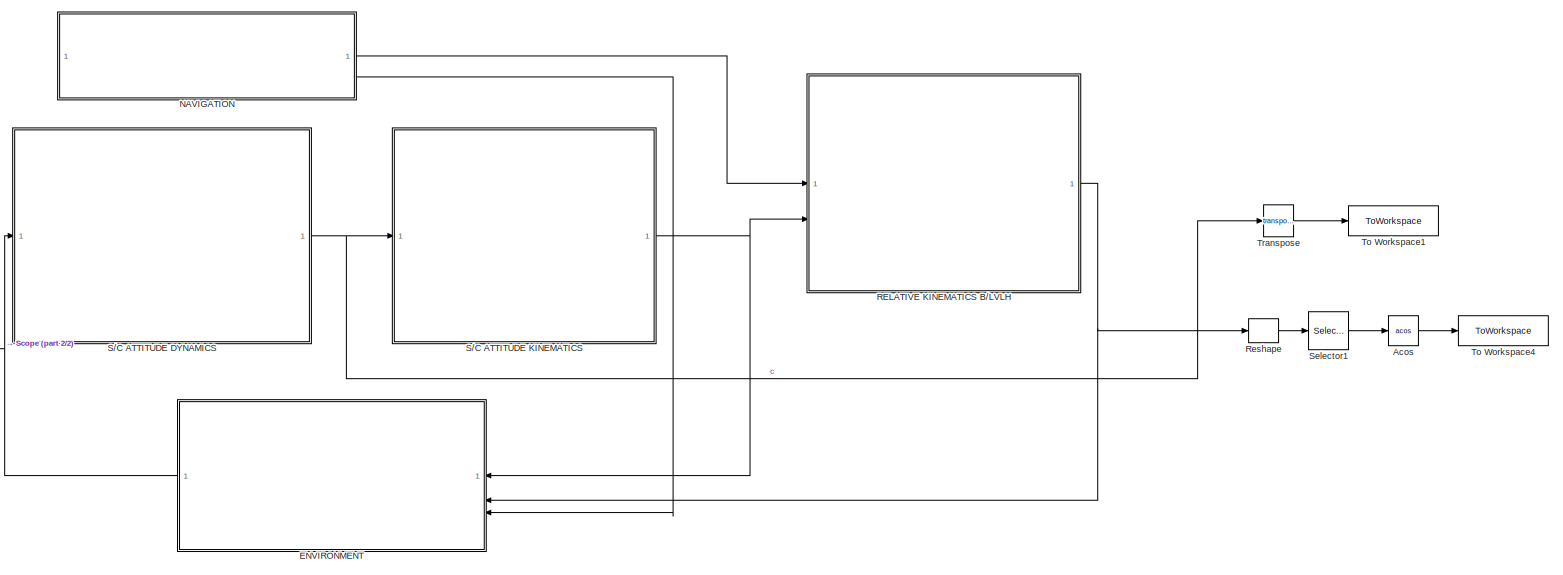
[diagram: root canvas - part 1/2, most of the canvas]
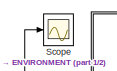
[diagram: root canvas - part 2/2, top left region]
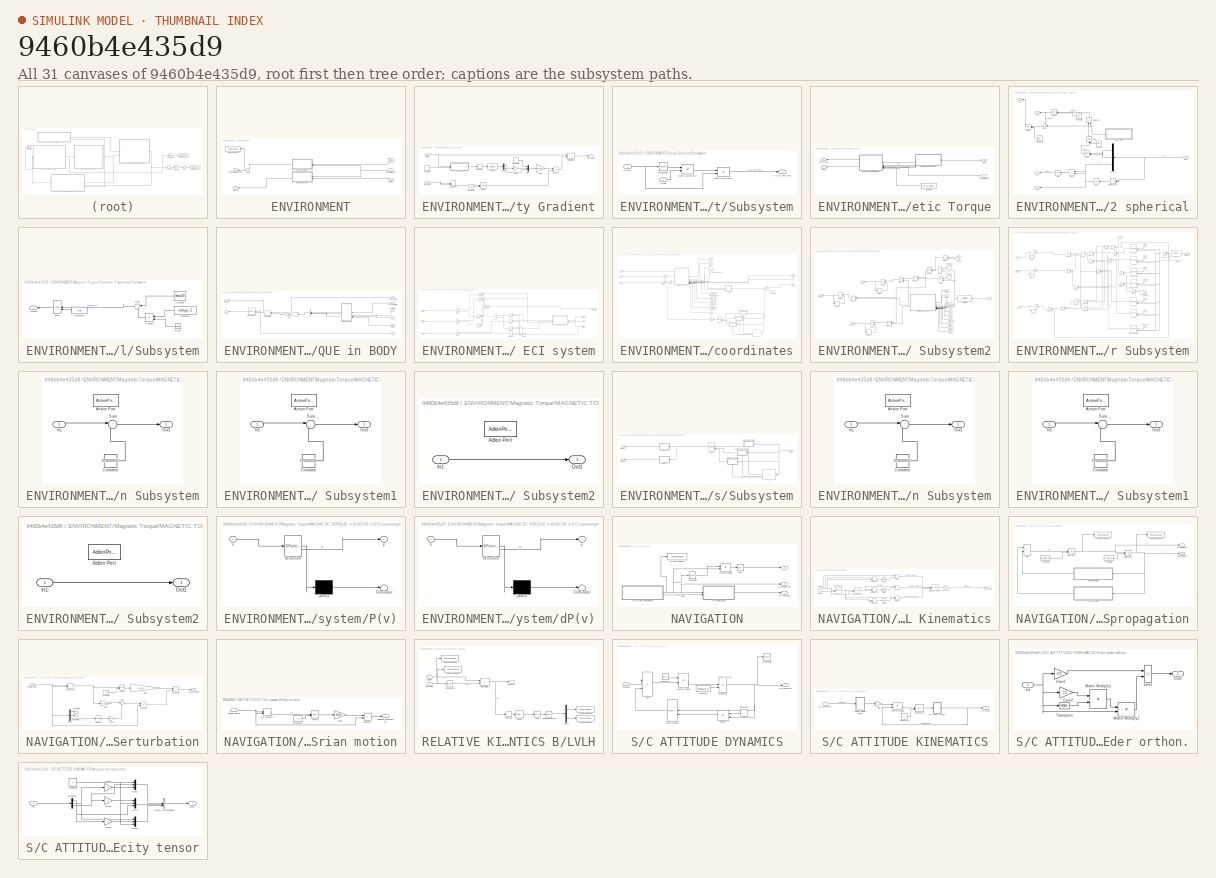
[diagram: thumbnail index - all 31 canvases of the model, root first then tree order]
MODEL slx_9460b4e435d9
KIND model
CONFIG AbsTol = auto
CONFIG EnableMultiTasking = off
CONFIG FixedStep = 0.1
CONFIG MaxStep = auto
CONFIG MinStep = auto
CONFIG RelTol = 1e-3
CONFIG SampleTimeConstraint = Unconstrained
CONFIG SolverName = ode4
CONFIG StartTime = 0.0
CONFIG StopTime = 50
BLOCK [Trigonometry] Acos
  Operator = acos
BLOCK [SubSystem] ENVIRONMENT
BLOCK [Inport] ENVIRONMENT/Att_B\ECI
  NameLocation = top
BLOCK [Inport] ENVIRONMENT/Att_B\LVLH
  Port = 2
BLOCK [SubSystem] ENVIRONMENT/Gravity Gradient
  NameLocation = top
BLOCK [Inport] ENVIRONMENT/Gravity Gradient/Att_B\L
BLOCK [Constant] ENVIRONMENT/Gravity Gradient/Constant
  Value = -1.5
BLOCK [Constant] ENVIRONMENT/Gravity Gradient/Constant7
  Value = I
BLOCK [Constant] ENVIRONMENT/Gravity Gradient/Constant8
  Value = 0
BLOCK [Demux] ENVIRONMENT/Gravity Gradient/Demux
  Outputs = 2
BLOCK [DotProduct] ENVIRONMENT/Gravity Gradient/Dot Product
  OutDataTypeStr = Inherit: Inherit via internal rule
BLOCK [Outport] ENVIRONMENT/Gravity Gradient/GG_Torque
BLOCK [Gain] ENVIRONMENT/Gravity Gradient/Gain2
  Gain = 3*mu_E
BLOCK [Gain] ENVIRONMENT/Gravity Gradient/Gain3
  Gain = -1
BLOCK [Product] ENVIRONMENT/Gravity Gradient/Matrix Multiply5
  Multiplication = Matrix(*)
BLOCK [Mux] ENVIRONMENT/Gravity Gradient/Mux4
  DisplayOption = bar
  Inputs = 3
BLOCK [Math] ENVIRONMENT/Gravity Gradient/Power
  Operator = pow
BLOCK [Product] ENVIRONMENT/Gravity Gradient/Product
BLOCK [Reshape] ENVIRONMENT/Gravity Gradient/Reshape
BLOCK [Inport] ENVIRONMENT/Gravity Gradient/S//C Position
  Port = 2
BLOCK [Selector] ENVIRONMENT/Gravity Gradient/Selector
  IndexOptions = Index vector (dialog)
  Indices = [2,3]
  InputPortWidth = 9
  OutputSizes = 1
BLOCK [SubSystem] ENVIRONMENT/Gravity Gradient/Subsystem
BLOCK [Inport] ENVIRONMENT/Gravity Gradient/Subsystem/Att_B\L
BLOCK [Outport] ENVIRONMENT/Gravity Gradient/Subsystem/I LVLH FRAME
BLOCK [Inport] ENVIRONMENT/Gravity Gradient/Subsystem/I_Body
  Port = 2
BLOCK [Product] ENVIRONMENT/Gravity Gradient/Subsystem/Matrix Multiply3
  Multiplication = Matrix(*)
BLOCK [Product] ENVIRONMENT/Gravity Gradient/Subsystem/Matrix Multiply4
  Multiplication = Matrix(*)
BLOCK [Math] ENVIRONMENT/Gravity Gradient/Subsystem/Transpose2
  Operator = transpose
BLOCK [Outport] ENVIRONMENT/Mag_fld
  NameLocation = top
  Port = 2
BLOCK [SubSystem] ENVIRONMENT/Magnetic Torque
  NameLocation = top
BLOCK [SubSystem] ENVIRONMENT/Magnetic Torque/Cartesian 2 spherical
BLOCK [Trigonometry] ENVIRONMENT/Magnetic Torque/Cartesian 2 spherical/Asin
  NameLocation = top
  Operator = asin
BLOCK [Trigonometry] ENVIRONMENT/Magnetic Torque/Cartesian 2 spherical/Atan2
  NameLocation = top
  Operator = atan2
BLOCK [Constant] ENVIRONMENT/Magnetic Torque/Cartesian 2 spherical/Constant
  NameLocation = top
  Value = 2*pi
BLOCK [Constant] ENVIRONMENT/Magnetic Torque/Cartesian 2 spherical/Constant1
  NameLocation = top
  Value = 2*pi
BLOCK [Constant] ENVIRONMENT/Magnetic Torque/Cartesian 2 spherical/Constant2
  NameLocation = top
  Value = 2*pi
BLOCK [Demux] ENVIRONMENT/Magnetic Torque/Cartesian 2 spherical/Demux
  NameLocation = top
  Outputs = 3
BLOCK [Product] ENVIRONMENT/Magnetic Torque/Cartesian 2 spherical/Divide
  Inputs = */
  NameLocation = top
BLOCK [DotProduct] ENVIRONMENT/Magnetic Torque/Cartesian 2 spherical/Dot Product
  NameLocation = top
  OutDataTypeStr = Inherit: Inherit via internal rule
BLOCK [Outport] ENVIRONMENT/Magnetic Torque/Cartesian 2 spherical/LST
  NameLocation = top
BLOCK [Outport] ENVIRONMENT/Magnetic Torque/Cartesian 2 spherical/Long
  NameLocation = top
  Port = 2
BLOCK [Math] ENVIRONMENT/Magnetic Torque/Cartesian 2 spherical/Mod
  NameLocation = right
  Operator = mod
BLOCK [Math] ENVIRONMENT/Magnetic Torque/Cartesian 2 spherical/Mod1
  NameLocation = top
  Operator = mod
BLOCK [Math] ENVIRONMENT/Magnetic Torque/Cartesian 2 spherical/Mod2
  NameLocation = top
  Operator = mod
BLOCK [Sqrt] ENVIRONMENT/Magnetic Torque/Cartesian 2 spherical/Sqrt
  NameLocation = top
BLOCK [SubSystem] ENVIRONMENT/Magnetic Torque/Cartesian 2 spherical/Subsystem
  NameLocation = top
BLOCK [Clock] ENVIRONMENT/Magnetic Torque/Cartesian 2 spherical/Subsystem/Clock
  NameLocation = top
BLOCK [Constant] ENVIRONMENT/Magnetic Torque/Cartesian 2 spherical/Subsystem/Constant
  NameLocation = top
  Value = theta_G0
BLOCK [Constant] ENVIRONMENT/Magnetic Torque/Cartesian 2 spherical/Subsystem/Constant1
  NameLocation = top
  Value = omega_E
BLOCK [Constant] ENVIRONMENT/Magnetic Torque/Cartesian 2 spherical/Subsystem/Constant2
  NameLocation = top
  Value = 2*pi
BLOCK [Math] ENVIRONMENT/Magnetic Torque/Cartesian 2 spherical/Subsystem/Mod
  NameLocation = top
  Operator = mod
BLOCK [Outport] ENVIRONMENT/Magnetic Torque/Cartesian 2 spherical/Subsystem/Output
  NameLocation = top
BLOCK [Product] ENVIRONMENT/Magnetic Torque/Cartesian 2 spherical/Subsystem/Product
  NameLocation = top
BLOCK [Sum] ENVIRONMENT/Magnetic Torque/Cartesian 2 spherical/Subsystem/Sum
  Inputs = |++
  NameLocation = top
BLOCK [Sum] ENVIRONMENT/Magnetic Torque/Cartesian 2 spherical/Subtract
  IconShape = rectangular
  Inputs = +-
  NameLocation = right
BLOCK [Sum] ENVIRONMENT/Magnetic Torque/Cartesian 2 spherical/Sum
  Inputs = ++|
  NameLocation = top
BLOCK [Inport] ENVIRONMENT/Magnetic Torque/Cartesian 2 spherical/[km]
  NameLocation = top
BLOCK [Outport] ENVIRONMENT/Magnetic Torque/Cartesian 2 spherical/lat
  NameLocation = top
  Port = 4
BLOCK [Outport] ENVIRONMENT/Magnetic Torque/Cartesian 2 spherical/radius
  NameLocation = top
  Port = 3
BLOCK [Constant] ENVIRONMENT/Magnetic Torque/Constant1
  NameLocation = top
  Value = m_sc_body
BLOCK [SubSystem] ENVIRONMENT/Magnetic Torque/MAGNETIC TORQUE in BODY
  NameLocation = top
BLOCK [Concatenate] ENVIRONMENT/Magnetic Torque/MAGNETIC TORQUE in BODY/B
  NameLocation = top
  NumInputs = 3
BLOCK [SubSystem] ENVIRONMENT/Magnetic Torque/MAGNETIC TORQUE in BODY/B in ECI system
  NameLocation = top
BLOCK [Product] ENVIRONMENT/Magnetic Torque/MAGNETIC TORQUE in BODY/B in ECI system/Bphi cos
  NameLocation = top
BLOCK [Product] ENVIRONMENT/Magnetic Torque/MAGNETIC TORQUE in BODY/B in ECI system/Bphi sin
  NameLocation = top
BLOCK [Product] ENVIRONMENT/Magnetic Torque/MAGNETIC TORQUE in BODY/B in ECI system/Br cos
  NameLocation = top
BLOCK [Product] ENVIRONMENT/Magnetic Torque/MAGNETIC TORQUE in BODY/B in ECI system/Br sin
  NameLocation = top
BLOCK [Product] ENVIRONMENT/Magnetic Torque/MAGNETIC TORQUE in BODY/B in ECI system/Btheta cos
  NameLocation = top
BLOCK [Product] ENVIRONMENT/Magnetic Torque/MAGNETIC TORQUE in BODY/B in ECI system/Btheta sin
  NameLocation = top
BLOCK [Outport] ENVIRONMENT/Magnetic Torque/MAGNETIC TORQUE in BODY/B in ECI system/Out1
BLOCK [Outport] ENVIRONMENT/Magnetic Torque/MAGNETIC TORQUE in BODY/B in ECI system/Out2
  Port = 2
BLOCK [Outport] ENVIRONMENT/Magnetic Torque/MAGNETIC TORQUE in BODY/B in ECI system/Out3
  Port = 3
BLOCK [Product] ENVIRONMENT/Magnetic Torque/MAGNETIC TORQUE in BODY/B in ECI system/Product
  NameLocation = top
BLOCK [Product] ENVIRONMENT/Magnetic Torque/MAGNETIC TORQUE in BODY/B in ECI system/Product1
  NameLocation = top
BLOCK [Trigonometry] ENVIRONMENT/Magnetic Torque/MAGNETIC TORQUE in BODY/B in ECI system/SinCos
  NameLocation = top
  Operator = sincos
BLOCK [Trigonometry] ENVIRONMENT/Magnetic Torque/MAGNETIC TORQUE in BODY/B in ECI system/SinCos1
  NameLocation = top
  Operator = sincos
BLOCK [Sum] ENVIRONMENT/Magnetic Torque/MAGNETIC TORQUE in BODY/B in ECI system/Sum
  IconShape = rectangular
  Inputs = |++
  NameLocation = top
BLOCK [Sum] ENVIRONMENT/Magnetic Torque/MAGNETIC TORQUE in BODY/B in ECI system/Sum1
  IconShape = rectangular
  Inputs = |-+
  NameLocation = top
BLOCK [Sum] ENVIRONMENT/Magnetic Torque/MAGNETIC TORQUE in BODY/B in ECI system/Sum2
  IconShape = rectangular
  Inputs = |++
  NameLocation = top
BLOCK [Sum] ENVIRONMENT/Magnetic Torque/MAGNETIC TORQUE in BODY/B in ECI system/Sum3
  IconShape = rectangular
  Inputs = |++
  NameLocation = top
BLOCK [Inport] ENVIRONMENT/Magnetic Torque/MAGNETIC TORQUE in BODY/B in ECI system/latitude
  Port = 4
BLOCK [Inport] ENVIRONMENT/Magnetic Torque/MAGNETIC TORQUE in BODY/B in ECI system/local siderial time
BLOCK [Inport] ENVIRONMENT/Magnetic Torque/MAGNETIC TORQUE in BODY/B in ECI system/longitude
  Port = 2
BLOCK [Inport] ENVIRONMENT/Magnetic Torque/MAGNETIC TORQUE in BODY/B in ECI system/r
  Port = 3
BLOCK [SubSystem] ENVIRONMENT/Magnetic Torque/MAGNETIC TORQUE in BODY/B in ECI system/spherical coordinates
  NameLocation = top
BLOCK [Constant] ENVIRONMENT/Magnetic Torque/MAGNETIC TORQUE in BODY/B in ECI system/spherical coordinates/ (nxm)
  NameLocation = top
  Value = g_nm
BLOCK [Constant] ENVIRONMENT/Magnetic Torque/MAGNETIC TORQUE in BODY/B in ECI system/spherical coordinates/(nxm)
  NameLocation = top
  Value = h_nm
BLOCK [Outport] ENVIRONMENT/Magnetic Torque/MAGNETIC TORQUE in BODY/B in ECI system/spherical coordinates/B_p
  Port = 3
BLOCK [Outport] ENVIRONMENT/Magnetic Torque/MAGNETIC TORQUE in BODY/B in ECI system/spherical coordinates/B_r
BLOCK [Outport] ENVIRONMENT/Magnetic Torque/MAGNETIC TORQUE in BODY/B in ECI system/spherical coordinates/B_t
  Port = 2
BLOCK [Constant] ENVIRONMENT/Magnetic Torque/MAGNETIC TORQUE in BODY/B in ECI system/spherical coordinates/Constant11
  NameLocation = top
  Value = pi/2
BLOCK [Constant] ENVIRONMENT/Magnetic Torque/MAGNETIC TORQUE in BODY/B in ECI system/spherical coordinates/Constant12
  NameLocation = top
  Value = smith_norm
BLOCK [Constant] ENVIRONMENT/Magnetic Torque/MAGNETIC TORQUE in BODY/B in ECI system/spherical coordinates/Constant13
  NameLocation = top
  Value = correct_h
BLOCK [Constant] ENVIRONMENT/Magnetic Torque/MAGNETIC TORQUE in BODY/B in ECI system/spherical coordinates/Constant14
  NameLocation = top
  Value = correct_g
BLOCK [Product] ENVIRONMENT/Magnetic Torque/MAGNETIC TORQUE in BODY/B in ECI system/spherical coordinates/Divide
  Inputs = */
  NameLocation = top
BLOCK [Constant] ENVIRONMENT/Magnetic Torque/MAGNETIC TORQUE in BODY/B in ECI system/spherical coordinates/Earth's Radius [km]
  NameLocation = top
  Value = 6371.2
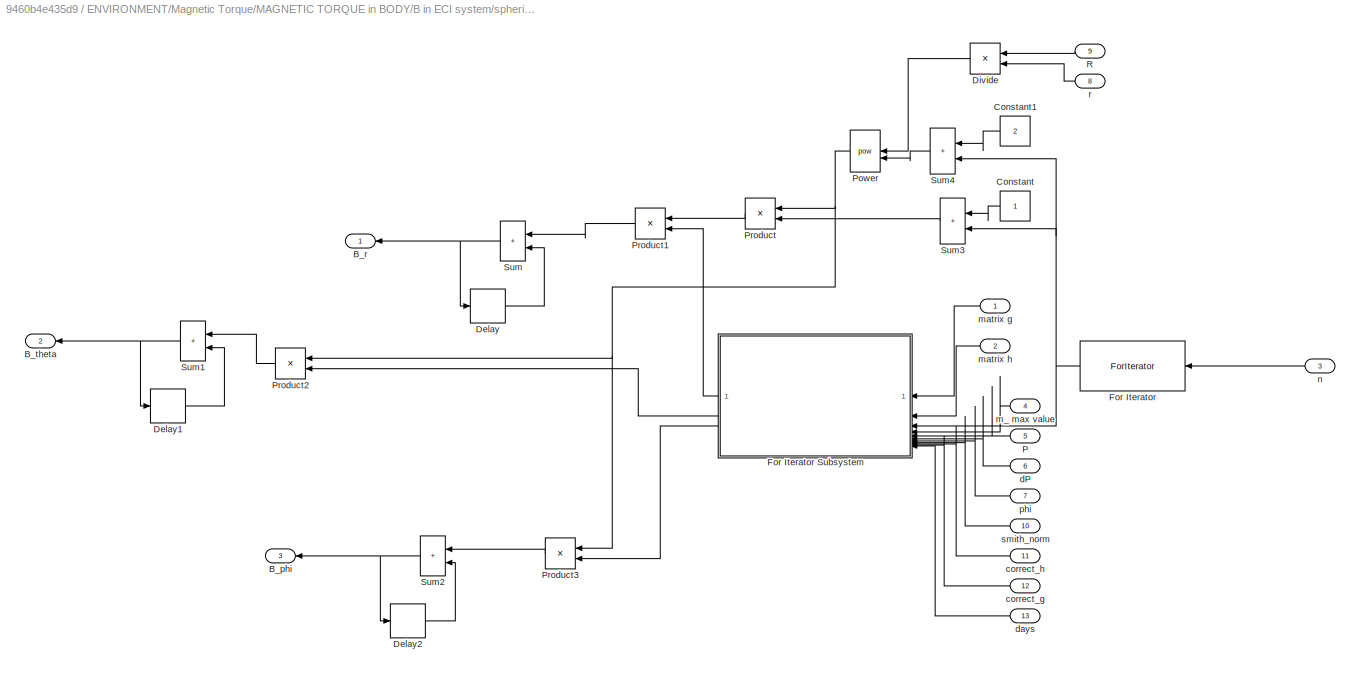
BLOCK [SubSystem] ENVIRONMENT/Magnetic Torque/MAGNETIC TORQUE in BODY/B in ECI system/spherical coordinates/For Iterator Subsystem2
  NameLocation = top
  TreatAsAtomicUnit = on
BLOCK [Outport] ENVIRONMENT/Magnetic Torque/MAGNETIC TORQUE in BODY/B in ECI system/spherical coordinates/For Iterator Subsystem2/B_phi
  NameLocation = top
  Port = 3
BLOCK [Outport] ENVIRONMENT/Magnetic Torque/MAGNETIC TORQUE in BODY/B in ECI system/spherical coordinates/For Iterator Subsystem2/B_r
  NameLocation = top
BLOCK [Outport] ENVIRONMENT/Magnetic Torque/MAGNETIC TORQUE in BODY/B in ECI system/spherical coordinates/For Iterator Subsystem2/B_theta
  NameLocation = top
  Port = 2
BLOCK [Constant] ENVIRONMENT/Magnetic Torque/MAGNETIC TORQUE in BODY/B in ECI system/spherical coordinates/For Iterator Subsystem2/Constant
  NameLocation = top
BLOCK [Constant] ENVIRONMENT/Magnetic Torque/MAGNETIC TORQUE in BODY/B in ECI system/spherical coordinates/For Iterator Subsystem2/Constant1
  NameLocation = top
  Value = 2
BLOCK [Delay] ENVIRONMENT/Magnetic Torque/MAGNETIC TORQUE in BODY/B in ECI system/spherical coordinates/For Iterator Subsystem2/Delay
  DelayLength = 1
  InitialCondition = 0
  InputPortMap = u0
BLOCK [Delay] ENVIRONMENT/Magnetic Torque/MAGNETIC TORQUE in BODY/B in ECI system/spherical coordinates/For Iterator Subsystem2/Delay1
  DelayLength = 1
  InitialCondition = 0
  InputPortMap = u0
BLOCK [Delay] ENVIRONMENT/Magnetic Torque/MAGNETIC TORQUE in BODY/B in ECI system/spherical coordinates/For Iterator Subsystem2/Delay2
  DelayLength = 1
  InitialCondition = 0
  InputPortMap = u0
BLOCK [Product] ENVIRONMENT/Magnetic Torque/MAGNETIC TORQUE in BODY/B in ECI system/spherical coordinates/For Iterator Subsystem2/Divide
  Inputs = */
  NameLocation = top
BLOCK [ForIterator] ENVIRONMENT/Magnetic Torque/MAGNETIC TORQUE in BODY/B in ECI system/spherical coordinates/For Iterator Subsystem2/For Iterator
  IterationSource = external
  NameLocation = top
  ResetStates = reset
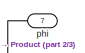
[diagram: ENVIRONMENT/Magnetic Torque/MAGNETIC TORQUE in BODY/B in ECI system/spherical coordinates/For Iterator Subsystem2/For Iterator Subsystem - part 1/3, top center region]
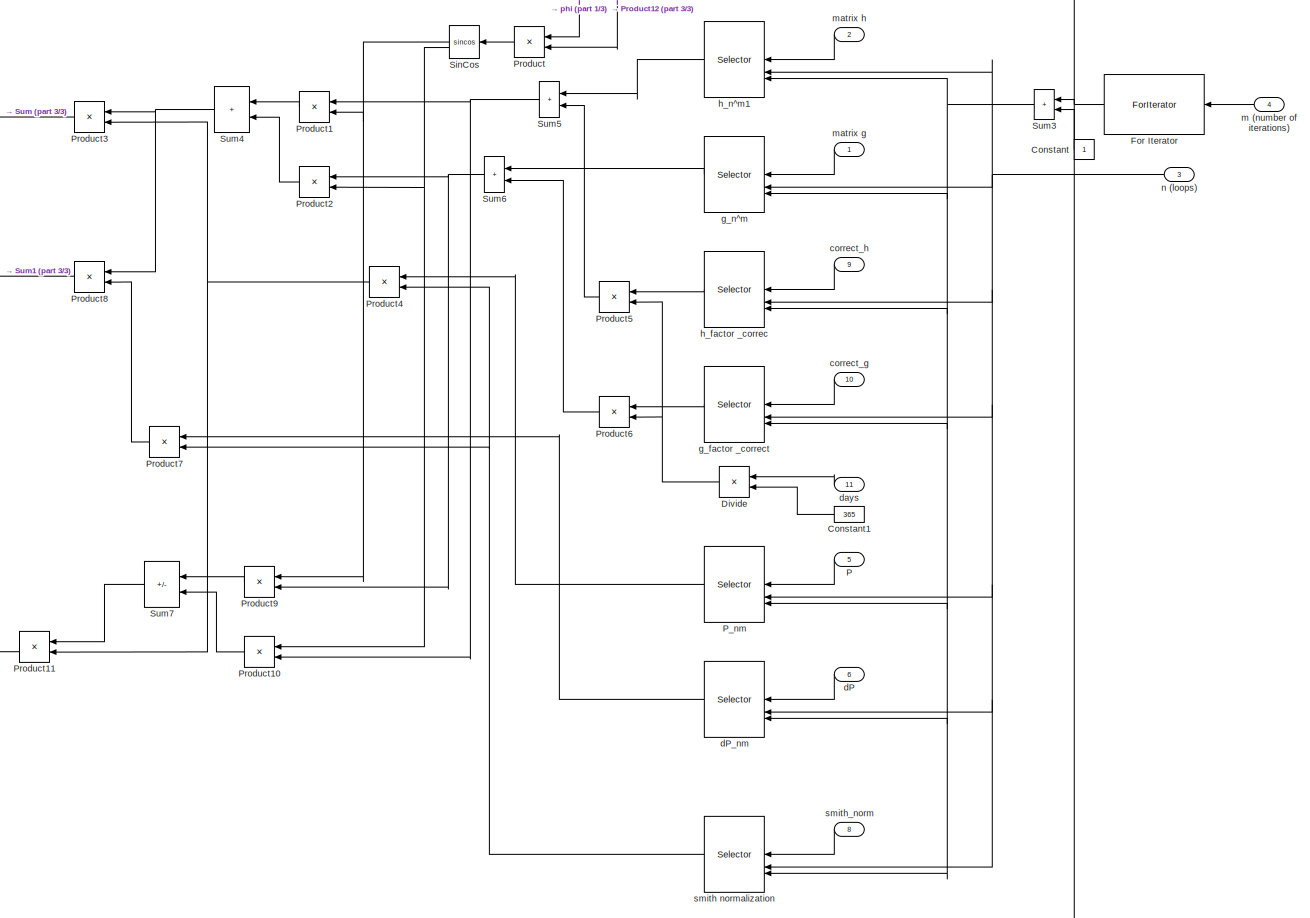
[diagram: ENVIRONMENT/Magnetic Torque/MAGNETIC TORQUE in BODY/B in ECI system/spherical coordinates/For Iterator Subsystem2/For Iterator Subsystem - part 2/3, most of the canvas]
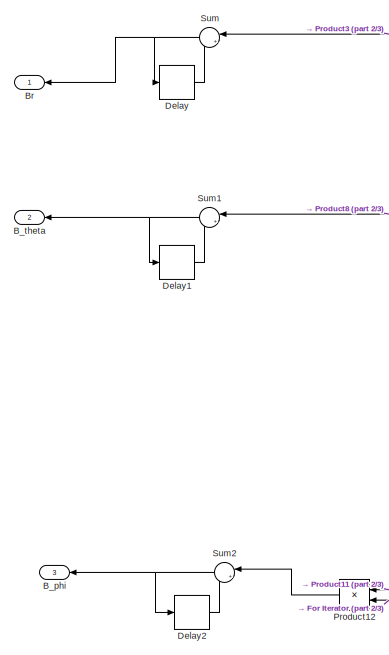
[diagram: ENVIRONMENT/Magnetic Torque/MAGNETIC TORQUE in BODY/B in ECI system/spherical coordinates/For Iterator Subsystem2/For Iterator Subsystem - part 3/3, middle left region]
BLOCK [SubSystem] ENVIRONMENT/Magnetic Torque/MAGNETIC TORQUE in BODY/B in ECI system/spherical coordinates/For Iterator Subsystem2/For Iterator Subsystem
  NameLocation = top
  TreatAsAtomicUnit = on
BLOCK [Outport] ENVIRONMENT/Magnetic Torque/MAGNETIC TORQUE in BODY/B in ECI system/spherical coordinates/For Iterator Subsystem2/For Iterator Subsystem/B_phi
  NameLocation = top
  Port = 3
BLOCK [Outport] ENVIRONMENT/Magnetic Torque/MAGNETIC TORQUE in BODY/B in ECI system/spherical coordinates/For Iterator Subsystem2/For Iterator Subsystem/B_theta
  NameLocation = top
  Port = 2
BLOCK [Outport] ENVIRONMENT/Magnetic Torque/MAGNETIC TORQUE in BODY/B in ECI system/spherical coordinates/For Iterator Subsystem2/For Iterator Subsystem/Br
  NameLocation = top
BLOCK [Constant] ENVIRONMENT/Magnetic Torque/MAGNETIC TORQUE in BODY/B in ECI system/spherical coordinates/For Iterator Subsystem2/For Iterator Subsystem/Constant
  NameLocation = top
BLOCK [Constant] ENVIRONMENT/Magnetic Torque/MAGNETIC TORQUE in BODY/B in ECI system/spherical coordinates/For Iterator Subsystem2/For Iterator Subsystem/Constant1
  NameLocation = top
  Value = 365
BLOCK [Delay] ENVIRONMENT/Magnetic Torque/MAGNETIC TORQUE in BODY/B in ECI system/spherical coordinates/For Iterator Subsystem2/For Iterator Subsystem/Delay
  DelayLength = 1
  InitialCondition = 0
  InputPortMap = u0
BLOCK [Delay] ENVIRONMENT/Magnetic Torque/MAGNETIC TORQUE in BODY/B in ECI system/spherical coordinates/For Iterator Subsystem2/For Iterator Subsystem/Delay1
  DelayLength = 1
  InitialCondition = 0
  InputPortMap = u0
BLOCK [Delay] ENVIRONMENT/Magnetic Torque/MAGNETIC TORQUE in BODY/B in ECI system/spherical coordinates/For Iterator Subsystem2/For Iterator Subsystem/Delay2
  DelayLength = 1
  InitialCondition = 0
  InputPortMap = u0
BLOCK [Product] ENVIRONMENT/Magnetic Torque/MAGNETIC TORQUE in BODY/B in ECI system/spherical coordinates/For Iterator Subsystem2/For Iterator Subsystem/Divide
  Inputs = */
  NameLocation = top
BLOCK [ForIterator] ENVIRONMENT/Magnetic Torque/MAGNETIC TORQUE in BODY/B in ECI system/spherical coordinates/For Iterator Subsystem2/For Iterator Subsystem/For Iterator
  IndexMode = Zero-based
  IterationSource = external
  NameLocation = top
  ResetStates = reset
BLOCK [Inport] ENVIRONMENT/Magnetic Torque/MAGNETIC TORQUE in BODY/B in ECI system/spherical coordinates/For Iterator Subsystem2/For Iterator Subsystem/P
  NameLocation = top
  Port = 5
BLOCK [Selector] ENVIRONMENT/Magnetic Torque/MAGNETIC TORQUE in BODY/B in ECI system/spherical coordinates/For Iterator Subsystem2/For Iterator Subsystem/P_nm
  IndexOptions = Starting index (port),Starting index (port)
  Indices = [1 3],1
  InputPortWidth = 6
  NameLocation = top
  NumberOfDimensions = 2
  OutputSizes = 1,1
BLOCK [Product] ENVIRONMENT/Magnetic Torque/MAGNETIC TORQUE in BODY/B in ECI system/spherical coordinates/For Iterator Subsystem2/For Iterator Subsystem/Product
  NameLocation = top
BLOCK [Product] ENVIRONMENT/Magnetic Torque/MAGNETIC TORQUE in BODY/B in ECI system/spherical coordinates/For Iterator Subsystem2/For Iterator Subsystem/Product1
  NameLocation = top
BLOCK [Product] ENVIRONMENT/Magnetic Torque/MAGNETIC TORQUE in BODY/B in ECI system/spherical coordinates/For Iterator Subsystem2/For Iterator Subsystem/Product10
  NameLocation = top
BLOCK [Product] ENVIRONMENT/Magnetic Torque/MAGNETIC TORQUE in BODY/B in ECI system/spherical coordinates/For Iterator Subsystem2/For Iterator Subsystem/Product11
  NameLocation = top
BLOCK [Product] ENVIRONMENT/Magnetic Torque/MAGNETIC TORQUE in BODY/B in ECI system/spherical coordinates/For Iterator Subsystem2/For Iterator Subsystem/Product12
  NameLocation = top
BLOCK [Product] ENVIRONMENT/Magnetic Torque/MAGNETIC TORQUE in BODY/B in ECI system/spherical coordinates/For Iterator Subsystem2/For Iterator Subsystem/Product2
  NameLocation = top
BLOCK [Product] ENVIRONMENT/Magnetic Torque/MAGNETIC TORQUE in BODY/B in ECI system/spherical coordinates/For Iterator Subsystem2/For Iterator Subsystem/Product3
  NameLocation = top
BLOCK [Product] ENVIRONMENT/Magnetic Torque/MAGNETIC TORQUE in BODY/B in ECI system/spherical coordinates/For Iterator Subsystem2/For Iterator Subsystem/Product4
  NameLocation = top
BLOCK [Product] ENVIRONMENT/Magnetic Torque/MAGNETIC TORQUE in BODY/B in ECI system/spherical coordinates/For Iterator Subsystem2/For Iterator Subsystem/Product5
  NameLocation = top
BLOCK [Product] ENVIRONMENT/Magnetic Torque/MAGNETIC TORQUE in BODY/B in ECI system/spherical coordinates/For Iterator Subsystem2/For Iterator Subsystem/Product6
  NameLocation = top
BLOCK [Product] ENVIRONMENT/Magnetic Torque/MAGNETIC TORQUE in BODY/B in ECI system/spherical coordinates/For Iterator Subsystem2/For Iterator Subsystem/Product7
  NameLocation = top
BLOCK [Product] ENVIRONMENT/Magnetic Torque/MAGNETIC TORQUE in BODY/B in ECI system/spherical coordinates/For Iterator Subsystem2/For Iterator Subsystem/Product8
  NameLocation = top
BLOCK [Product] ENVIRONMENT/Magnetic Torque/MAGNETIC TORQUE in BODY/B in ECI system/spherical coordinates/For Iterator Subsystem2/For Iterator Subsystem/Product9
  NameLocation = top
BLOCK [Trigonometry] ENVIRONMENT/Magnetic Torque/MAGNETIC TORQUE in BODY/B in ECI system/spherical coordinates/For Iterator Subsystem2/For Iterator Subsystem/SinCos
  NameLocation = top
  Operator = sincos
BLOCK [Sum] ENVIRONMENT/Magnetic Torque/MAGNETIC TORQUE in BODY/B in ECI system/spherical coordinates/For Iterator Subsystem2/For Iterator Subsystem/Sum
  Inputs = |++
  NameLocation = top
BLOCK [Sum] ENVIRONMENT/Magnetic Torque/MAGNETIC TORQUE in BODY/B in ECI system/spherical coordinates/For Iterator Subsystem2/For Iterator Subsystem/Sum1
  Inputs = |++
  NameLocation = top
BLOCK [Sum] ENVIRONMENT/Magnetic Torque/MAGNETIC TORQUE in BODY/B in ECI system/spherical coordinates/For Iterator Subsystem2/For Iterator Subsystem/Sum2
  Inputs = |++
  NameLocation = top
BLOCK [Sum] ENVIRONMENT/Magnetic Torque/MAGNETIC TORQUE in BODY/B in ECI system/spherical coordinates/For Iterator Subsystem2/For Iterator Subsystem/Sum3
  IconShape = rectangular
  Inputs = |++
  NameLocation = top
BLOCK [Sum] ENVIRONMENT/Magnetic Torque/MAGNETIC TORQUE in BODY/B in ECI system/spherical coordinates/For Iterator Subsystem2/For Iterator Subsystem/Sum4
  IconShape = rectangular
  Inputs = |++
  NameLocation = top
BLOCK [Sum] ENVIRONMENT/Magnetic Torque/MAGNETIC TORQUE in BODY/B in ECI system/spherical coordinates/For Iterator Subsystem2/For Iterator Subsystem/Sum5
  IconShape = rectangular
  Inputs = |++
  NameLocation = top
BLOCK [Sum] ENVIRONMENT/Magnetic Torque/MAGNETIC TORQUE in BODY/B in ECI system/spherical coordinates/For Iterator Subsystem2/For Iterator Subsystem/Sum6
  IconShape = rectangular
  Inputs = |++
  NameLocation = top
BLOCK [Sum] ENVIRONMENT/Magnetic Torque/MAGNETIC TORQUE in BODY/B in ECI system/spherical coordinates/For Iterator Subsystem2/For Iterator Subsystem/Sum7
  IconShape = rectangular
  Inputs = |-+
  NameLocation = top
BLOCK [Inport] ENVIRONMENT/Magnetic Torque/MAGNETIC TORQUE in BODY/B in ECI system/spherical coordinates/For Iterator Subsystem2/For Iterator Subsystem/correct_g
  NameLocation = top
  Port = 10
BLOCK [Inport] ENVIRONMENT/Magnetic Torque/MAGNETIC TORQUE in BODY/B in ECI system/spherical coordinates/For Iterator Subsystem2/For Iterator Subsystem/correct_h 
  NameLocation = top
  Port = 9
BLOCK [Inport] ENVIRONMENT/Magnetic Torque/MAGNETIC TORQUE in BODY/B in ECI system/spherical coordinates/For Iterator Subsystem2/For Iterator Subsystem/dP
  NameLocation = top
  Port = 6
BLOCK [Selector] ENVIRONMENT/Magnetic Torque/MAGNETIC TORQUE in BODY/B in ECI system/spherical coordinates/For Iterator Subsystem2/For Iterator Subsystem/dP_nm
  IndexOptions = Starting index (port),Starting index (port)
  Indices = [1 3],1
  InputPortWidth = 6
  NameLocation = top
  NumberOfDimensions = 2
  OutputSizes = 1,1
BLOCK [Inport] ENVIRONMENT/Magnetic Torque/MAGNETIC TORQUE in BODY/B in ECI system/spherical coordinates/For Iterator Subsystem2/For Iterator Subsystem/days
  NameLocation = top
  Port = 11
BLOCK [Selector] ENVIRONMENT/Magnetic Torque/MAGNETIC TORQUE in BODY/B in ECI system/spherical coordinates/For Iterator Subsystem2/For Iterator Subsystem/g_factor _correct
  IndexOptions = Starting index (port),Starting index (port)
  Indices = [1 3],1
  InputPortWidth = 6
  NameLocation = top
  NumberOfDimensions = 2
  OutputSizes = 1,1
BLOCK [Selector] ENVIRONMENT/Magnetic Torque/MAGNETIC TORQUE in BODY/B in ECI system/spherical coordinates/For Iterator Subsystem2/For Iterator Subsystem/g_n^m
  IndexOptions = Starting index (port),Starting index (port)
  Indices = [1 3],1
  InputPortWidth = 6
  NameLocation = top
  NumberOfDimensions = 2
  OutputSizes = 1,1
BLOCK [Selector] ENVIRONMENT/Magnetic Torque/MAGNETIC TORQUE in BODY/B in ECI system/spherical coordinates/For Iterator Subsystem2/For Iterator Subsystem/h_factor _correc
  IndexOptions = Starting index (port),Starting index (port)
  Indices = [1 3],1
  InputPortWidth = 6
  NameLocation = top
  NumberOfDimensions = 2
  OutputSizes = 1,1
BLOCK [Selector] ENVIRONMENT/Magnetic Torque/MAGNETIC TORQUE in BODY/B in ECI system/spherical coordinates/For Iterator Subsystem2/For Iterator Subsystem/h_n^m1
  IndexOptions = Starting index (port),Starting index (port)
  Indices = [1 3],1
  InputPortWidth = 6
  NameLocation = top
  NumberOfDimensions = 2
  OutputSizes = 1,1
BLOCK [Inport] ENVIRONMENT/Magnetic Torque/MAGNETIC TORQUE in BODY/B in ECI system/spherical coordinates/For Iterator Subsystem2/For Iterator Subsystem/m (number of iterations)
  NameLocation = top
  Port = 4
BLOCK [Inport] ENVIRONMENT/Magnetic Torque/MAGNETIC TORQUE in BODY/B in ECI system/spherical coordinates/For Iterator Subsystem2/For Iterator Subsystem/matrix g
  NameLocation = top
BLOCK [Inport] ENVIRONMENT/Magnetic Torque/MAGNETIC TORQUE in BODY/B in ECI system/spherical coordinates/For Iterator Subsystem2/For Iterator Subsystem/matrix h
  NameLocation = top
  Port = 2
BLOCK [Inport] ENVIRONMENT/Magnetic Torque/MAGNETIC TORQUE in BODY/B in ECI system/spherical coordinates/For Iterator Subsystem2/For Iterator Subsystem/n (loops)
  NameLocation = top
  Port = 3
BLOCK [Inport] ENVIRONMENT/Magnetic Torque/MAGNETIC TORQUE in BODY/B in ECI system/spherical coordinates/For Iterator Subsystem2/For Iterator Subsystem/phi
  NameLocation = top
  Port = 7
BLOCK [Selector] ENVIRONMENT/Magnetic Torque/MAGNETIC TORQUE in BODY/B in ECI system/spherical coordinates/For Iterator Subsystem2/For Iterator Subsystem/smith normalization
  IndexOptions = Starting index (port),Starting index (port)
  Indices = [1 3],1
  InputPortWidth = 6
  NameLocation = top
  NumberOfDimensions = 2
  OutputSizes = 1,1
BLOCK [Inport] ENVIRONMENT/Magnetic Torque/MAGNETIC TORQUE in BODY/B in ECI system/spherical coordinates/For Iterator Subsystem2/For Iterator Subsystem/smith_norm
  NameLocation = top
  Port = 8
BLOCK [Inport] ENVIRONMENT/Magnetic Torque/MAGNETIC TORQUE in BODY/B in ECI system/spherical coordinates/For Iterator Subsystem2/P
  NameLocation = top
  Port = 5
BLOCK [Math] ENVIRONMENT/Magnetic Torque/MAGNETIC TORQUE in BODY/B in ECI system/spherical coordinates/For Iterator Subsystem2/Power
  NameLocation = top
  Operator = pow
  OutputSignalType = real
BLOCK [Product] ENVIRONMENT/Magnetic Torque/MAGNETIC TORQUE in BODY/B in ECI system/spherical coordinates/For Iterator Subsystem2/Product
  NameLocation = top
BLOCK [Product] ENVIRONMENT/Magnetic Torque/MAGNETIC TORQUE in BODY/B in ECI system/spherical coordinates/For Iterator Subsystem2/Product1
  NameLocation = top
BLOCK [Product] ENVIRONMENT/Magnetic Torque/MAGNETIC TORQUE in BODY/B in ECI system/spherical coordinates/For Iterator Subsystem2/Product2
  NameLocation = top
BLOCK [Product] ENVIRONMENT/Magnetic Torque/MAGNETIC TORQUE in BODY/B in ECI system/spherical coordinates/For Iterator Subsystem2/Product3
  NameLocation = top
BLOCK [Inport] ENVIRONMENT/Magnetic Torque/MAGNETIC TORQUE in BODY/B in ECI system/spherical coordinates/For Iterator Subsystem2/R
  NameLocation = top
  Port = 9
BLOCK [Sum] ENVIRONMENT/Magnetic Torque/MAGNETIC TORQUE in BODY/B in ECI system/spherical coordinates/For Iterator Subsystem2/Sum
  IconShape = rectangular
  Inputs = |++
  NameLocation = top
BLOCK [Sum] ENVIRONMENT/Magnetic Torque/MAGNETIC TORQUE in BODY/B in ECI system/spherical coordinates/For Iterator Subsystem2/Sum1
  IconShape = rectangular
  Inputs = |++
  NameLocation = top
BLOCK [Sum] ENVIRONMENT/Magnetic Torque/MAGNETIC TORQUE in BODY/B in ECI system/spherical coordinates/For Iterator Subsystem2/Sum2
  IconShape = rectangular
  Inputs = |++
  NameLocation = top
BLOCK [Sum] ENVIRONMENT/Magnetic Torque/MAGNETIC TORQUE in BODY/B in ECI system/spherical coordinates/For Iterator Subsystem2/Sum3
  IconShape = rectangular
  Inputs = |++
  NameLocation = top
  OutDataTypeStr = double
BLOCK [Sum] ENVIRONMENT/Magnetic Torque/MAGNETIC TORQUE in BODY/B in ECI system/spherical coordinates/For Iterator Subsystem2/Sum4
  IconShape = rectangular
  Inputs = |++
  NameLocation = top
  OutDataTypeStr = double
BLOCK [Inport] ENVIRONMENT/Magnetic Torque/MAGNETIC TORQUE in BODY/B in ECI system/spherical coordinates/For Iterator Subsystem2/correct_g
  NameLocation = top
  Port = 12
BLOCK [Inport] ENVIRONMENT/Magnetic Torque/MAGNETIC TORQUE in BODY/B in ECI system/spherical coordinates/For Iterator Subsystem2/correct_h 
  NameLocation = top
  Port = 11
BLOCK [Inport] ENVIRONMENT/Magnetic Torque/MAGNETIC TORQUE in BODY/B in ECI system/spherical coordinates/For Iterator Subsystem2/dP
  NameLocation = top
  Port = 6
BLOCK [Inport] ENVIRONMENT/Magnetic Torque/MAGNETIC TORQUE in BODY/B in ECI system/spherical coordinates/For Iterator Subsystem2/days
  NameLocation = top
  Port = 13
BLOCK [Inport] ENVIRONMENT/Magnetic Torque/MAGNETIC TORQUE in BODY/B in ECI system/spherical coordinates/For Iterator Subsystem2/m_ max value
  NameLocation = top
  Port = 4
BLOCK [Inport] ENVIRONMENT/Magnetic Torque/MAGNETIC TORQUE in BODY/B in ECI system/spherical coordinates/For Iterator Subsystem2/matrix g
  NameLocation = top
BLOCK [Inport] ENVIRONMENT/Magnetic Torque/MAGNETIC TORQUE in BODY/B in ECI system/spherical coordinates/For Iterator Subsystem2/matrix h
  NameLocation = top
  Port = 2
BLOCK [Inport] ENVIRONMENT/Magnetic Torque/MAGNETIC TORQUE in BODY/B in ECI system/spherical coordinates/For Iterator Subsystem2/n
  NameLocation = top
  Port = 3
BLOCK [Inport] ENVIRONMENT/Magnetic Torque/MAGNETIC TORQUE in BODY/B in ECI system/spherical coordinates/For Iterator Subsystem2/phi
  NameLocation = top
  Port = 7
BLOCK [Inport] ENVIRONMENT/Magnetic Torque/MAGNETIC TORQUE in BODY/B in ECI system/spherical coordinates/For Iterator Subsystem2/r
  NameLocation = top
  Port = 8
BLOCK [Inport] ENVIRONMENT/Magnetic Torque/MAGNETIC TORQUE in BODY/B in ECI system/spherical coordinates/For Iterator Subsystem2/smith_norm
  NameLocation = top
  Port = 10
BLOCK [Gain] ENVIRONMENT/Magnetic Torque/MAGNETIC TORQUE in BODY/B in ECI system/spherical coordinates/Gain
  Gain = -1
  NameLocation = top
BLOCK [Gain] ENVIRONMENT/Magnetic Torque/MAGNETIC TORQUE in BODY/B in ECI system/spherical coordinates/Gain1
  Gain = -1
  NameLocation = top
BLOCK [If] ENVIRONMENT/Magnetic Torque/MAGNETIC TORQUE in BODY/B in ECI system/spherical coordinates/If
  ElseIfExpressions = u1==pi
  IfExpression = u1 ==0
  NameLocation = top
BLOCK [SubSystem] ENVIRONMENT/Magnetic Torque/MAGNETIC TORQUE in BODY/B in ECI system/spherical coordinates/If Action Subsystem
  NameLocation = top
  TreatAsAtomicUnit = on
BLOCK [ActionPort] ENVIRONMENT/Magnetic Torque/MAGNETIC TORQUE in BODY/B in ECI system/spherical coordinates/If Action Subsystem/Action Port
  ActionPortLabel = if(u1 ==0)
BLOCK [Constant] ENVIRONMENT/Magnetic Torque/MAGNETIC TORQUE in BODY/B in ECI system/spherical coordinates/If Action Subsystem/Constant
  Value = 0.0000001
BLOCK [Inport] ENVIRONMENT/Magnetic Torque/MAGNETIC TORQUE in BODY/B in ECI system/spherical coordinates/If Action Subsystem/In1
BLOCK [Outport] ENVIRONMENT/Magnetic Torque/MAGNETIC TORQUE in BODY/B in ECI system/spherical coordinates/If Action Subsystem/Out1
BLOCK [Sum] ENVIRONMENT/Magnetic Torque/MAGNETIC TORQUE in BODY/B in ECI system/spherical coordinates/If Action Subsystem/Sum
  Inputs = |++
BLOCK [SubSystem] ENVIRONMENT/Magnetic Torque/MAGNETIC TORQUE in BODY/B in ECI system/spherical coordinates/If Action Subsystem1
  NameLocation = top
  TreatAsAtomicUnit = on
BLOCK [ActionPort] ENVIRONMENT/Magnetic Torque/MAGNETIC TORQUE in BODY/B in ECI system/spherical coordinates/If Action Subsystem1/Action Port
  ActionPortLabel = elseif(u1==pi)
BLOCK [Constant] ENVIRONMENT/Magnetic Torque/MAGNETIC TORQUE in BODY/B in ECI system/spherical coordinates/If Action Subsystem1/Constant
  Value = 0.0000001
BLOCK [Inport] ENVIRONMENT/Magnetic Torque/MAGNETIC TORQUE in BODY/B in ECI system/spherical coordinates/If Action Subsystem1/In1
BLOCK [Outport] ENVIRONMENT/Magnetic Torque/MAGNETIC TORQUE in BODY/B in ECI system/spherical coordinates/If Action Subsystem1/Out1
BLOCK [Sum] ENVIRONMENT/Magnetic Torque/MAGNETIC TORQUE in BODY/B in ECI system/spherical coordinates/If Action Subsystem1/Sum
  Inputs = |++
BLOCK [SubSystem] ENVIRONMENT/Magnetic Torque/MAGNETIC TORQUE in BODY/B in ECI system/spherical coordinates/If Action Subsystem2
  NameLocation = top
  TreatAsAtomicUnit = on
BLOCK [ActionPort] ENVIRONMENT/Magnetic Torque/MAGNETIC TORQUE in BODY/B in ECI system/spherical coordinates/If Action Subsystem2/Action Port
  ActionPortLabel = else
BLOCK [Inport] ENVIRONMENT/Magnetic Torque/MAGNETIC TORQUE in BODY/B in ECI system/spherical coordinates/If Action Subsystem2/In1
BLOCK [Outport] ENVIRONMENT/Magnetic Torque/MAGNETIC TORQUE in BODY/B in ECI system/spherical coordinates/If Action Subsystem2/Out1
BLOCK [Merge] ENVIRONMENT/Magnetic Torque/MAGNETIC TORQUE in BODY/B in ECI system/spherical coordinates/Merge
  Inputs = 3
  NameLocation = top
BLOCK [Trigonometry] ENVIRONMENT/Magnetic Torque/MAGNETIC TORQUE in BODY/B in ECI system/spherical coordinates/Sin
  NameLocation = top
BLOCK [SubSystem] ENVIRONMENT/Magnetic Torque/MAGNETIC TORQUE in BODY/B in ECI system/spherical coordinates/Subsystem
  NameLocation = top
BLOCK [If] ENVIRONMENT/Magnetic Torque/MAGNETIC TORQUE in BODY/B in ECI system/spherical coordinates/Subsystem/If
  ElseIfExpressions = u1==pi
  IfExpression = u1 ==0
  NameLocation = top
BLOCK [SubSystem] ENVIRONMENT/Magnetic Torque/MAGNETIC TORQUE in BODY/B in ECI system/spherical coordinates/Subsystem/If Action Subsystem
  NameLocation = top
  TreatAsAtomicUnit = on
BLOCK [ActionPort] ENVIRONMENT/Magnetic Torque/MAGNETIC TORQUE in BODY/B in ECI system/spherical coordinates/Subsystem/If Action Subsystem/Action Port
  ActionPortLabel = if(u1 ==0)
BLOCK [Constant] ENVIRONMENT/Magnetic Torque/MAGNETIC TORQUE in BODY/B in ECI system/spherical coordinates/Subsystem/If Action Subsystem/Constant
  Value = 0.0000001
BLOCK [Inport] ENVIRONMENT/Magnetic Torque/MAGNETIC TORQUE in BODY/B in ECI system/spherical coordinates/Subsystem/If Action Subsystem/In1
BLOCK [Outport] ENVIRONMENT/Magnetic Torque/MAGNETIC TORQUE in BODY/B in ECI system/spherical coordinates/Subsystem/If Action Subsystem/Out1
BLOCK [Sum] ENVIRONMENT/Magnetic Torque/MAGNETIC TORQUE in BODY/B in ECI system/spherical coordinates/Subsystem/If Action Subsystem/Sum
  Inputs = |++
BLOCK [SubSystem] ENVIRONMENT/Magnetic Torque/MAGNETIC TORQUE in BODY/B in ECI system/spherical coordinates/Subsystem/If Action Subsystem1
  NameLocation = top
  TreatAsAtomicUnit = on
BLOCK [ActionPort] ENVIRONMENT/Magnetic Torque/MAGNETIC TORQUE in BODY/B in ECI system/spherical coordinates/Subsystem/If Action Subsystem1/Action Port
  ActionPortLabel = elseif(u1==pi)
BLOCK [Constant] ENVIRONMENT/Magnetic Torque/MAGNETIC TORQUE in BODY/B in ECI system/spherical coordinates/Subsystem/If Action Subsystem1/Constant
  Value = 0.0000001
BLOCK [Inport] ENVIRONMENT/Magnetic Torque/MAGNETIC TORQUE in BODY/B in ECI system/spherical coordinates/Subsystem/If Action Subsystem1/In1
BLOCK [Outport] ENVIRONMENT/Magnetic Torque/MAGNETIC TORQUE in BODY/B in ECI system/spherical coordinates/Subsystem/If Action Subsystem1/Out1
BLOCK [Sum] ENVIRONMENT/Magnetic Torque/MAGNETIC TORQUE in BODY/B in ECI system/spherical coordinates/Subsystem/If Action Subsystem1/Sum
  Inputs = |++
BLOCK [SubSystem] ENVIRONMENT/Magnetic Torque/MAGNETIC TORQUE in BODY/B in ECI system/spherical coordinates/Subsystem/If Action Subsystem2
  NameLocation = top
  TreatAsAtomicUnit = on
BLOCK [ActionPort] ENVIRONMENT/Magnetic Torque/MAGNETIC TORQUE in BODY/B in ECI system/spherical coordinates/Subsystem/If Action Subsystem2/Action Port
  ActionPortLabel = else
BLOCK [Inport] ENVIRONMENT/Magnetic Torque/MAGNETIC TORQUE in BODY/B in ECI system/spherical coordinates/Subsystem/If Action Subsystem2/In1
BLOCK [Outport] ENVIRONMENT/Magnetic Torque/MAGNETIC TORQUE in BODY/B in ECI system/spherical coordinates/Subsystem/If Action Subsystem2/Out1
BLOCK [Inport] ENVIRONMENT/Magnetic Torque/MAGNETIC TORQUE in BODY/B in ECI system/spherical coordinates/Subsystem/In1
BLOCK [Merge] ENVIRONMENT/Magnetic Torque/MAGNETIC TORQUE in BODY/B in ECI system/spherical coordinates/Subsystem/Merge
  Inputs = 3
  NameLocation = top
BLOCK [Outport] ENVIRONMENT/Magnetic Torque/MAGNETIC TORQUE in BODY/B in ECI system/spherical coordinates/Subsystem/P(theta)
BLOCK [SubSystem] ENVIRONMENT/Magnetic Torque/MAGNETIC TORQUE in BODY/B in ECI system/spherical coordinates/Subsystem/P(v)
  ErrorFcn = Stateflow.Translate.translate
  NameLocation = top
  PermitHierarchicalResolution = ExplicitOnly
  SFBlockType = MATLAB Function
  TreatAsAtomicUnit = on
BLOCK [Demux] ENVIRONMENT/Magnetic Torque/MAGNETIC TORQUE in BODY/B in ECI system/spherical coordinates/Subsystem/P(v)/ Demux 
  Outputs = 1
BLOCK [S-Function] ENVIRONMENT/Magnetic Torque/MAGNETIC TORQUE in BODY/B in ECI system/spherical coordinates/Subsystem/P(v)/ SFunction 
  EnableBusSupport = on
  FunctionName = sf_sfun
  PortCounts = [1 2]
  SFcnIsStateOwnerBlock = off
  SFunctionDeploymentMode = off
  Tag = Stateflow S-Function 2
BLOCK [Terminator] ENVIRONMENT/Magnetic Torque/MAGNETIC TORQUE in BODY/B in ECI system/spherical coordinates/Subsystem/P(v)/ Terminator 
BLOCK [Inport] ENVIRONMENT/Magnetic Torque/MAGNETIC TORQUE in BODY/B in ECI system/spherical coordinates/Subsystem/P(v)/u
BLOCK [Outport] ENVIRONMENT/Magnetic Torque/MAGNETIC TORQUE in BODY/B in ECI system/spherical coordinates/Subsystem/P(v)/y
BLOCK [Outport] ENVIRONMENT/Magnetic Torque/MAGNETIC TORQUE in BODY/B in ECI system/spherical coordinates/Subsystem/dP(theta)
  Port = 2
BLOCK [SubSystem] ENVIRONMENT/Magnetic Torque/MAGNETIC TORQUE in BODY/B in ECI system/spherical coordinates/Subsystem/dP(v)
  ErrorFcn = Stateflow.Translate.translate
  NameLocation = top
  PermitHierarchicalResolution = ExplicitOnly
  SFBlockType = MATLAB Function
  TreatAsAtomicUnit = on
BLOCK [Demux] ENVIRONMENT/Magnetic Torque/MAGNETIC TORQUE in BODY/B in ECI system/spherical coordinates/Subsystem/dP(v)/ Demux 
  Outputs = 1
BLOCK [S-Function] ENVIRONMENT/Magnetic Torque/MAGNETIC TORQUE in BODY/B in ECI system/spherical coordinates/Subsystem/dP(v)/ SFunction 
  EnableBusSupport = on
  FunctionName = sf_sfun
  PortCounts = [1 2]
  SFcnIsStateOwnerBlock = off
  SFunctionDeploymentMode = off
  Tag = Stateflow S-Function 1
BLOCK [Terminator] ENVIRONMENT/Magnetic Torque/MAGNETIC TORQUE in BODY/B in ECI system/spherical coordinates/Subsystem/dP(v)/ Terminator 
BLOCK [Inport] ENVIRONMENT/Magnetic Torque/MAGNETIC TORQUE in BODY/B in ECI system/spherical coordinates/Subsystem/dP(v)/u
BLOCK [Outport] ENVIRONMENT/Magnetic Torque/MAGNETIC TORQUE in BODY/B in ECI system/spherical coordinates/Subsystem/dP(v)/y
BLOCK [Sum] ENVIRONMENT/Magnetic Torque/MAGNETIC TORQUE in BODY/B in ECI system/spherical coordinates/Sum
  IconShape = rectangular
  Inputs = |-+
  NameLocation = top
BLOCK [Constant] ENVIRONMENT/Magnetic Torque/MAGNETIC TORQUE in BODY/B in ECI system/spherical coordinates/days
  NameLocation = top
  Value = 1451
BLOCK [Inport] ENVIRONMENT/Magnetic Torque/MAGNETIC TORQUE in BODY/B in ECI system/spherical coordinates/latitude
  Port = 3
BLOCK [Inport] ENVIRONMENT/Magnetic Torque/MAGNETIC TORQUE in BODY/B in ECI system/spherical coordinates/longitude
BLOCK [Constant] ENVIRONMENT/Magnetic Torque/MAGNETIC TORQUE in BODY/B in ECI system/spherical coordinates/m_max value (n+1)
  NameLocation = top
  Value = 5
BLOCK [Constant] ENVIRONMENT/Magnetic Torque/MAGNETIC TORQUE in BODY/B in ECI system/spherical coordinates/n_max value
  NameLocation = top
  OutDataTypeStr = int32
  Value = 4
BLOCK [Inport] ENVIRONMENT/Magnetic Torque/MAGNETIC TORQUE in BODY/B in ECI system/spherical coordinates/r
  Port = 2
BLOCK [Reference] ENVIRONMENT/Magnetic Torque/MAGNETIC TORQUE in BODY/Cross Product  REF=matrix_library/Cross Product
  LibrarySourceBlock = simulink/Matrix\nOperations/Cross Product
  NameLocation = top
  SourceBlock = matrix_library/Cross Product
  SourceType = CrossProduct
BLOCK [Gain] ENVIRONMENT/Magnetic Torque/MAGNETIC TORQUE in BODY/Gain
  Gain = 1e-9
  NameLocation = top
BLOCK [Outport] ENVIRONMENT/Magnetic Torque/MAGNETIC TORQUE in BODY/M
BLOCK [Outport] ENVIRONMENT/Magnetic Torque/MAGNETIC TORQUE in BODY/Mag_fld
  NameLocation = top
  Port = 2
BLOCK [Product] ENVIRONMENT/Magnetic Torque/MAGNETIC TORQUE in BODY/Matrix Multiply
  Multiplication = Matrix(*)
  NameLocation = top
BLOCK [Inport] ENVIRONMENT/Magnetic Torque/MAGNETIC TORQUE in BODY/True_Att_B\N
  NameLocation = top
  Port = 5
BLOCK [Inport] ENVIRONMENT/Magnetic Torque/MAGNETIC TORQUE in BODY/a
  Port = 6
BLOCK [Inport] ENVIRONMENT/Magnetic Torque/MAGNETIC TORQUE in BODY/latitude
  Port = 4
BLOCK [Inport] ENVIRONMENT/Magnetic Torque/MAGNETIC TORQUE in BODY/local siderial time
BLOCK [Inport] ENVIRONMENT/Magnetic Torque/MAGNETIC TORQUE in BODY/longitude
  Port = 2
BLOCK [Inport] ENVIRONMENT/Magnetic Torque/MAGNETIC TORQUE in BODY/r
  Port = 3
BLOCK [Outport] ENVIRONMENT/Magnetic Torque/MF_Torque
  NameLocation = top
BLOCK [Outport] ENVIRONMENT/Magnetic Torque/Mag_fld
  NameLocation = top
  Port = 2
BLOCK [Inport] ENVIRONMENT/Magnetic Torque/True Attitude B\N
  Port = 2
BLOCK [Inport] ENVIRONMENT/Magnetic Torque/[km]
  NameLocation = top
BLOCK [Outport] ENVIRONMENT/Perturbing torques
  NameLocation = top
BLOCK [Inport] ENVIRONMENT/S//C Position ECI
  NameLocation = top
  Port = 3
BLOCK [Sum] ENVIRONMENT/Sum
  Inputs = +|+
  NameLocation = top
BLOCK [ToWorkspace] ENVIRONMENT/To Workspace1
  FixptAsFi = on
  MaxDataPoints = inf
  NameLocation = top
  SampleTime = -1
  VariableName = ext_perturbations
BLOCK [SubSystem] NAVIGATION
BLOCK [Outport] NAVIGATION/Att_LVLH\ECI
BLOCK [SubSystem] NAVIGATION/LVLH Kinematics
BLOCK [Outport] NAVIGATION/LVLH Kinematics/Att_LVLH\ECI
BLOCK [Reference] NAVIGATION/LVLH Kinematics/Cross Product  REF=matrix_library/Cross Product
  LibrarySourceBlock = simulink/Matrix\nOperations/Cross Product
  SourceBlock = matrix_library/Cross Product
  SourceType = CrossProduct
BLOCK [Reference] NAVIGATION/LVLH Kinematics/Cross Product1  REF=matrix_library/Cross Product
  LibrarySourceBlock = simulink/Matrix\nOperations/Cross Product
  SourceBlock = matrix_library/Cross Product
  SourceType = CrossProduct
BLOCK [Product] NAVIGATION/LVLH Kinematics/Divide
  Inputs = */
BLOCK [Product] NAVIGATION/LVLH Kinematics/Divide1
  Inputs = */
BLOCK [Product] NAVIGATION/LVLH Kinematics/Divide2
  Inputs = */
BLOCK [DotProduct] NAVIGATION/LVLH Kinematics/Dot Product
  OutDataTypeStr = Inherit: Inherit via internal rule
BLOCK [DotProduct] NAVIGATION/LVLH Kinematics/Dot Product1
  OutDataTypeStr = Inherit: Inherit via internal rule
BLOCK [DotProduct] NAVIGATION/LVLH Kinematics/Dot Product2
  OutDataTypeStr = Inherit: Inherit via internal rule
BLOCK [Concatenate] NAVIGATION/LVLH Kinematics/Matrix Concatenate
  ConcatenateDimension = 2
  Mode = Multidimensional array
  NumInputs = 3
BLOCK [Sqrt] NAVIGATION/LVLH Kinematics/Sqrt
BLOCK [Sqrt] NAVIGATION/LVLH Kinematics/Sqrt1
BLOCK [Sqrt] NAVIGATION/LVLH Kinematics/Sqrt2
BLOCK [Math] NAVIGATION/LVLH Kinematics/Transpose
  Operator = transpose
BLOCK [Inport] NAVIGATION/LVLH Kinematics/position
BLOCK [Inport] NAVIGATION/LVLH Kinematics/velocity
  Port = 2
BLOCK [Product] NAVIGATION/Matrix Multiply
  Multiplication = Matrix(*)
BLOCK [SubSystem] NAVIGATION/S//C Orbit propagation
BLOCK [Constant] NAVIGATION/S//C Orbit propagation/Constant5
  Value = vv_Esc_0
BLOCK [Constant] NAVIGATION/S//C Orbit propagation/Constant6
  Value = rr_Esc_0
BLOCK [Integrator] NAVIGATION/S//C Orbit propagation/Integrator2
  InitialConditionSource = external
BLOCK [Integrator] NAVIGATION/S//C Orbit propagation/Integrator3
  InitialConditionSource = external
BLOCK [SubSystem] NAVIGATION/S//C Orbit propagation/J2 perturbation
  NameLocation = top
BLOCK [Constant] NAVIGATION/S//C Orbit propagation/J2 perturbation/Constant7
  Value = -3.5
BLOCK [Demux] NAVIGATION/S//C Orbit propagation/J2 perturbation/Demux
  Outputs = 3
BLOCK [DotProduct] NAVIGATION/S//C Orbit propagation/J2 perturbation/Dot Product1
  OutDataTypeStr = Inherit: Inherit via internal rule
BLOCK [Gain] NAVIGATION/S//C Orbit propagation/J2 perturbation/Gain1
  Gain = [1;1;3]
BLOCK [Gain] NAVIGATION/S//C Orbit propagation/J2 perturbation/Gain2
  Gain = 1.5*J2*mu_E*R_E_eqtr^2
BLOCK [Gain] NAVIGATION/S//C Orbit propagation/J2 perturbation/Gain3
  Gain = 5
BLOCK [Outport] NAVIGATION/S//C Orbit propagation/J2 perturbation/J2 acceleration
BLOCK [Inport] NAVIGATION/S//C Orbit propagation/J2 perturbation/Position vector
BLOCK [Math] NAVIGATION/S//C Orbit propagation/J2 perturbation/Power2
  Operator = pow
BLOCK [Math] NAVIGATION/S//C Orbit propagation/J2 perturbation/Power3
  Operator = square
BLOCK [Product] NAVIGATION/S//C Orbit propagation/J2 perturbation/Product2
BLOCK [Product] NAVIGATION/S//C Orbit propagation/J2 perturbation/Product4
BLOCK [Sum] NAVIGATION/S//C Orbit propagation/J2 perturbation/Sum1
  Inputs = |-+
BLOCK [Terminator] NAVIGATION/S//C Orbit propagation/J2 perturbation/Terminator
BLOCK [Terminator] NAVIGATION/S//C Orbit propagation/J2 perturbation/Terminator1
BLOCK [SubSystem] NAVIGATION/S//C Orbit propagation/Keplerian motion
  NameLocation = top
BLOCK [Constant] NAVIGATION/S//C Orbit propagation/Keplerian motion/Constant
  Value = -1.5
BLOCK [DotProduct] NAVIGATION/S//C Orbit propagation/Keplerian motion/Dot Product2
  OutDataTypeStr = Inherit: Inherit via internal rule
BLOCK [Gain] NAVIGATION/S//C Orbit propagation/Keplerian motion/Gain1
  Gain = mu_E
BLOCK [Outport] NAVIGATION/S//C Orbit propagation/Keplerian motion/Keplerian acceleration
BLOCK [Inport] NAVIGATION/S//C Orbit propagation/Keplerian motion/Position vector
BLOCK [Math] NAVIGATION/S//C Orbit propagation/Keplerian motion/Power
  Operator = pow
BLOCK [Product] NAVIGATION/S//C Orbit propagation/Keplerian motion/Product1
BLOCK [Outport] NAVIGATION/S//C Orbit propagation/S//C Posiion ECI
BLOCK [Outport] NAVIGATION/S//C Orbit propagation/S//C Velocity ECI
  Port = 2
BLOCK [Sum] NAVIGATION/S//C Orbit propagation/Sum
  IconShape = rectangular
  Inputs = |+-
BLOCK [ToWorkspace] NAVIGATION/S//C Orbit propagation/To Workspace
  FixptAsFi = on
  MaxDataPoints = inf
  SampleTime = -1
  VariableName = RR_Esc
BLOCK [ToWorkspace] NAVIGATION/S//C Orbit propagation/To Workspace1
  FixptAsFi = on
  MaxDataPoints = inf
  SampleTime = -1
  VariableName = VV_Esc
BLOCK [Outport] NAVIGATION/S//C position ECI
  NameLocation = top
  Port = 3
BLOCK [Sqrt] NAVIGATION/Sqrt
BLOCK [ToWorkspace] NAVIGATION/To Workspace4
  FixptAsFi = on
  MaxDataPoints = inf
  SampleTime = -1
  Save2DSignal = 2-D array (concatenate along first dimension)
  VariableName = position
BLOCK [Math] NAVIGATION/Transpose
  Operator = transpose
BLOCK [Outport] NAVIGATION/r
  Port = 2
BLOCK [SubSystem] RELATIVE KINEMATICS B//LVLH
BLOCK [Trigonometry] RELATIVE KINEMATICS B//LVLH/Acos
  Operator = acos
BLOCK [Inport] RELATIVE KINEMATICS B//LVLH/Att_B\ECI
  Port = 2
BLOCK [Outport] RELATIVE KINEMATICS B//LVLH/Att_B\LVLH
BLOCK [Inport] RELATIVE KINEMATICS B//LVLH/Att_LVLH\ECI
BLOCK [Demux] RELATIVE KINEMATICS B//LVLH/Demux
  Outputs = 2
BLOCK [Product] RELATIVE KINEMATICS B//LVLH/Matrix Multiply1
  Multiplication = Matrix(*)
BLOCK [Reference] RELATIVE KINEMATICS B//LVLH/Radians to Degrees  REF=simulink_extras/Transformations/Radians
to Degrees
  SourceBlock = simulink_extras/Transformations/Radians\nto Degrees
  SourceType = RadiansToDegrees
BLOCK [Reshape] RELATIVE KINEMATICS B//LVLH/Reshape
BLOCK [Selector] RELATIVE KINEMATICS B//LVLH/Selector
  IndexOptions = Index vector (dialog)
  Indices = [1,9]
  InputPortWidth = 9
  OutputSizes = 1
BLOCK [ToWorkspace] RELATIVE KINEMATICS B//LVLH/To Workspace1
  FixptAsFi = on
  MaxDataPoints = inf
  SampleTime = -1
  Save2DSignal = 2-D array (concatenate along first dimension)
  VariableName = test2
BLOCK [ToWorkspace] RELATIVE KINEMATICS B//LVLH/To Workspace2
  FixptAsFi = on
  MaxDataPoints = inf
  SampleTime = -1
  Save2DSignal = 2-D array (concatenate along first dimension)
  VariableName = alpha_x
BLOCK [ToWorkspace] RELATIVE KINEMATICS B//LVLH/To Workspace3
  FixptAsFi = on
  MaxDataPoints = inf
  SampleTime = -1
  Save2DSignal = 2-D array (concatenate along first dimension)
  VariableName = alpha_z
BLOCK [ToWorkspace] RELATIVE KINEMATICS B//LVLH/To Workspace4
  FixptAsFi = on
  MaxDataPoints = inf
  SampleTime = -1
  Save2DSignal = 2-D array (concatenate along first dimension)
  VariableName = test1
BLOCK [Math] RELATIVE KINEMATICS B//LVLH/Transpose1
  Operator = transpose
BLOCK [Reshape] Reshape
BLOCK [SubSystem] S//C ATTITUDE DYNAMICS
BLOCK [Constant] S//C ATTITUDE DYNAMICS/Constant
  Value = omega_sc_0
BLOCK [Constant] S//C ATTITUDE DYNAMICS/Constant1
  NameLocation = top
  Value = I
  VectorParams1D = off
BLOCK [Constant] S//C ATTITUDE DYNAMICS/Constant3
  Value = Inv_I
  VectorParams1D = off
BLOCK [Reference] S//C ATTITUDE DYNAMICS/Cross Product  REF=matrix_library/Cross Product
  LibrarySourceBlock = simulink/Matrix\nOperations/Cross Product
  NameLocation = top
  SourceBlock = matrix_library/Cross Product
  SourceType = CrossProduct
BLOCK [Integrator] S//C ATTITUDE DYNAMICS/Integrator
  InitialCondition = omega_0
  InitialConditionSource = external
BLOCK [Product] S//C ATTITUDE DYNAMICS/Matrix Multiply
  Multiplication = Matrix(*)
BLOCK [Product] S//C ATTITUDE DYNAMICS/Product
  Multiplication = Matrix(*)
  NameLocation = top
BLOCK [Outport] S//C ATTITUDE DYNAMICS/S//C omega B
BLOCK [Sum] S//C ATTITUDE DYNAMICS/Sum
  IconShape = rectangular
  Inputs = |+-
BLOCK [Inport] S//C ATTITUDE DYNAMICS/Torques
  NameLocation = top
BLOCK [Math] S//C ATTITUDE DYNAMICS/Transpose
  Operator = transpose
BLOCK [SubSystem] S//C ATTITUDE KINEMATICS
BLOCK [SubSystem] S//C ATTITUDE KINEMATICS/1st order orthon.
BLOCK [Gain] S//C ATTITUDE KINEMATICS/1st order orthon./Gain1
  Gain = 3/2
BLOCK [Gain] S//C ATTITUDE KINEMATICS/1st order orthon./Gain2
  Gain = 1/2
BLOCK [Inport] S//C ATTITUDE KINEMATICS/1st order orthon./In1
BLOCK [Product] S//C ATTITUDE KINEMATICS/1st order orthon./Matrix Multiply1
  Multiplication = Matrix(*)
BLOCK [Product] S//C ATTITUDE KINEMATICS/1st order orthon./Matrix Multiply2
  Multiplication = Matrix(*)
BLOCK [Outport] S//C ATTITUDE KINEMATICS/1st order orthon./Out1
BLOCK [Sum] S//C ATTITUDE KINEMATICS/1st order orthon./Sum1
  IconShape = rectangular
  Inputs = |+-
BLOCK [Math] S//C ATTITUDE KINEMATICS/1st order orthon./Transpose
  Operator = transpose
BLOCK [SubSystem] S//C ATTITUDE KINEMATICS/Angular velocity tensor
BLOCK [Constant] S//C ATTITUDE KINEMATICS/Angular velocity tensor/Constant
  Value = 0
BLOCK [Demux] S//C ATTITUDE KINEMATICS/Angular velocity tensor/Demux1
  Outputs = 3
BLOCK [Gain] S//C ATTITUDE KINEMATICS/Angular velocity tensor/Gain3
  Gain = -1
BLOCK [Gain] S//C ATTITUDE KINEMATICS/Angular velocity tensor/Gain4
  Gain = -1
BLOCK [Gain] S//C ATTITUDE KINEMATICS/Angular velocity tensor/Gain5
  Gain = -1
BLOCK [Inport] S//C ATTITUDE KINEMATICS/Angular velocity tensor/In1
BLOCK [Mux] S//C ATTITUDE KINEMATICS/Angular velocity tensor/Mux3
  DisplayOption = bar
  Inputs = 3
BLOCK [Mux] S//C ATTITUDE KINEMATICS/Angular velocity tensor/Mux4
  DisplayOption = bar
  Inputs = 3
BLOCK [Mux] S//C ATTITUDE KINEMATICS/Angular velocity tensor/Mux5
  DisplayOption = bar
  Inputs = 3
BLOCK [Outport] S//C ATTITUDE KINEMATICS/Angular velocity tensor/Out1
BLOCK [Concatenate] S//C ATTITUDE KINEMATICS/Angular velocity tensor/Vector Concatenate
  ConcatenateDimension = 2
  Mode = Multidimensional array
  NumInputs = 3
BLOCK [Outport] S//C ATTITUDE KINEMATICS/Att_B\ECI
BLOCK [Constant] S//C ATTITUDE KINEMATICS/Constant3
  Value = A_0
BLOCK [Gain] S//C ATTITUDE KINEMATICS/Gain
  Gain = -1
BLOCK [Integrator] S//C ATTITUDE KINEMATICS/Integrator1
  InitialCondition = omega_0
  InitialConditionSource = external
BLOCK [Product] S//C ATTITUDE KINEMATICS/Matrix Multiply
  Multiplication = Matrix(*)
BLOCK [Inport] S//C ATTITUDE KINEMATICS/S//C omega B
BLOCK [Scope] Scope
  Floating = off
  NumInputPorts = 1
  ScopeSpecificationString = Simulink.scopes.TimeScopeBlockCfg('CurrentConfiguration', extmgr.ConfigurationSet(extmgr.Configuration('Core','General UI',true),extmgr.Configuration('Core','Source UI',true),extmgr.Configuration('Sources','WiredSimulink',true),extmgr.Configuration('Visuals','Time Domain',true,'SerializedDisplays',{struct('MinYLimReal','-0.00000013','MaxYLimReal','0.00000012','YLabelReal','','MinYLimMag','0.000000...<+1471ch>
BLOCK [Selector] Selector1
  IndexOptions = Index vector (dialog)
  Indices = [1,5,9]
  InputPortWidth = 9
  OutputSizes = 1
BLOCK [ToWorkspace] To Workspace1
  FixptAsFi = on
  MaxDataPoints = inf
  SampleTime = -1
  Save2DSignal = 2-D array (concatenate along first dimension)
  VariableName = omega_sc
BLOCK [ToWorkspace] To Workspace4
  FixptAsFi = on
  MaxDataPoints = inf
  SampleTime = -1
  Save2DSignal = 2-D array (concatenate along first dimension)
  VariableName = gamma
BLOCK [Math] Transpose
  Operator = transpose
ANNOTATION S//C ATTITUDE DYNAMICS: omega
LINE Acos:1 -> To Workspace4:1
LINE ENVIRONMENT/Att_B\ECI:1 -> ENVIRONMENT/Magnetic Torque:2
LINE ENVIRONMENT/Att_B\LVLH:1 -> ENVIRONMENT/Gravity Gradient:1
NET ENVIRONMENT/Gravity Gradient/Att_B\L:1 -> ENVIRONMENT/Gravity Gradient/Matrix Multiply5:1, ENVIRONMENT/Gravity Gradient/Subsystem:1
LINE ENVIRONMENT/Gravity Gradient/Constant7:1 -> ENVIRONMENT/Gravity Gradient/Subsystem:2
LINE ENVIRONMENT/Gravity Gradient/Constant8:1 -> ENVIRONMENT/Gravity Gradient/Mux4:1
LINE ENVIRONMENT/Gravity Gradient/Constant:1 -> ENVIRONMENT/Gravity Gradient/Power:2
LINE ENVIRONMENT/Gravity Gradient/Demux:1 -> ENVIRONMENT/Gravity Gradient/Mux4:3
LINE ENVIRONMENT/Gravity Gradient/Demux:2 -> ENVIRONMENT/Gravity Gradient/Gain3:1
LINE ENVIRONMENT/Gravity Gradient/Dot Product:1 -> ENVIRONMENT/Gravity Gradient/Power:1
LINE ENVIRONMENT/Gravity Gradient/Gain2:1 -> ENVIRONMENT/Gravity Gradient/Product:1
LINE ENVIRONMENT/Gravity Gradient/Gain3:1 -> ENVIRONMENT/Gravity Gradient/Mux4:2
LINE ENVIRONMENT/Gravity Gradient/Matrix Multiply5:1 -> ENVIRONMENT/Gravity Gradient/GG_Torque:1
LINE ENVIRONMENT/Gravity Gradient/Mux4:1 -> ENVIRONMENT/Gravity Gradient/Gain2:1
LINE ENVIRONMENT/Gravity Gradient/Power:1 -> ENVIRONMENT/Gravity Gradient/Product:2
LINE ENVIRONMENT/Gravity Gradient/Product:1 -> ENVIRONMENT/Gravity Gradient/Matrix Multiply5:2
LINE ENVIRONMENT/Gravity Gradient/Reshape:1 -> ENVIRONMENT/Gravity Gradient/Selector:1
NET ENVIRONMENT/Gravity Gradient/S//C Position:1 -> ENVIRONMENT/Gravity Gradient/Dot Product:1, ENVIRONMENT/Gravity Gradient/Dot Product:2
LINE ENVIRONMENT/Gravity Gradient/Selector:1 -> ENVIRONMENT/Gravity Gradient/Demux:1
NET ENVIRONMENT/Gravity Gradient/Subsystem/Att_B\L:1 -> ENVIRONMENT/Gravity Gradient/Subsystem/Matrix Multiply3:2, ENVIRONMENT/Gravity Gradient/Subsystem/Transpose2:1
LINE ENVIRONMENT/Gravity Gradient/Subsystem/I_Body:1 -> ENVIRONMENT/Gravity Gradient/Subsystem/Matrix Multiply4:2
LINE ENVIRONMENT/Gravity Gradient/Subsystem/Matrix Multiply3:1 -> ENVIRONMENT/Gravity Gradient/Subsystem/I LVLH FRAME:1
LINE ENVIRONMENT/Gravity Gradient/Subsystem/Matrix Multiply4:1 -> ENVIRONMENT/Gravity Gradient/Subsystem/Matrix Multiply3:1
LINE ENVIRONMENT/Gravity Gradient/Subsystem/Transpose2:1 -> ENVIRONMENT/Gravity Gradient/Subsystem/Matrix Multiply4:1
LINE ENVIRONMENT/Gravity Gradient/Subsystem:1 -> ENVIRONMENT/Gravity Gradient/Reshape:1
LINE ENVIRONMENT/Gravity Gradient:1 -> ENVIRONMENT/Sum:1
LINE ENVIRONMENT/Magnetic Torque/Cartesian 2 spherical/Asin:1 -> ENVIRONMENT/Magnetic Torque/Cartesian 2 spherical/lat:1
LINE ENVIRONMENT/Magnetic Torque/Cartesian 2 spherical/Atan2:1 -> ENVIRONMENT/Magnetic Torque/Cartesian 2 spherical/Mod:1
LINE ENVIRONMENT/Magnetic Torque/Cartesian 2 spherical/Constant1:1 -> ENVIRONMENT/Magnetic Torque/Cartesian 2 spherical/Mod1:2
LINE ENVIRONMENT/Magnetic Torque/Cartesian 2 spherical/Constant2:1 -> ENVIRONMENT/Magnetic Torque/Cartesian 2 spherical/Mod2:2
LINE ENVIRONMENT/Magnetic Torque/Cartesian 2 spherical/Constant:1 -> ENVIRONMENT/Magnetic Torque/Cartesian 2 spherical/Mod:2
LINE ENVIRONMENT/Magnetic Torque/Cartesian 2 spherical/Demux:1 -> ENVIRONMENT/Magnetic Torque/Cartesian 2 spherical/Atan2:2
LINE ENVIRONMENT/Magnetic Torque/Cartesian 2 spherical/Demux:2 -> ENVIRONMENT/Magnetic Torque/Cartesian 2 spherical/Atan2:1
LINE ENVIRONMENT/Magnetic Torque/Cartesian 2 spherical/Demux:3 -> ENVIRONMENT/Magnetic Torque/Cartesian 2 spherical/Divide:1
LINE ENVIRONMENT/Magnetic Torque/Cartesian 2 spherical/Divide:1 -> ENVIRONMENT/Magnetic Torque/Cartesian 2 spherical/Asin:1
LINE ENVIRONMENT/Magnetic Torque/Cartesian 2 spherical/Dot Product:1 -> ENVIRONMENT/Magnetic Torque/Cartesian 2 spherical/Sqrt:1
NET ENVIRONMENT/Magnetic Torque/Cartesian 2 spherical/Mod1:1 -> ENVIRONMENT/Magnetic Torque/Cartesian 2 spherical/Long:1, ENVIRONMENT/Magnetic Torque/Cartesian 2 spherical/Sum:1
LINE ENVIRONMENT/Magnetic Torque/Cartesian 2 spherical/Mod2:1 -> ENVIRONMENT/Magnetic Torque/Cartesian 2 spherical/LST:1
LINE ENVIRONMENT/Magnetic Torque/Cartesian 2 spherical/Mod:1 -> ENVIRONMENT/Magnetic Torque/Cartesian 2 spherical/Subtract:1
NET ENVIRONMENT/Magnetic Torque/Cartesian 2 spherical/Sqrt:1 -> ENVIRONMENT/Magnetic Torque/Cartesian 2 spherical/Divide:2, ENVIRONMENT/Magnetic Torque/Cartesian 2 spherical/radius:1
LINE ENVIRONMENT/Magnetic Torque/Cartesian 2 spherical/Subsystem/Clock:1 -> ENVIRONMENT/Magnetic Torque/Cartesian 2 spherical/Subsystem/Product:2
LINE ENVIRONMENT/Magnetic Torque/Cartesian 2 spherical/Subsystem/Constant1:1 -> ENVIRONMENT/Magnetic Torque/Cartesian 2 spherical/Subsystem/Product:1
LINE ENVIRONMENT/Magnetic Torque/Cartesian 2 spherical/Subsystem/Constant2:1 -> ENVIRONMENT/Magnetic Torque/Cartesian 2 spherical/Subsystem/Mod:2
LINE ENVIRONMENT/Magnetic Torque/Cartesian 2 spherical/Subsystem/Constant:1 -> ENVIRONMENT/Magnetic Torque/Cartesian 2 spherical/Subsystem/Sum:1
LINE ENVIRONMENT/Magnetic Torque/Cartesian 2 spherical/Subsystem/Mod:1 -> ENVIRONMENT/Magnetic Torque/Cartesian 2 spherical/Subsystem/Output:1
LINE ENVIRONMENT/Magnetic Torque/Cartesian 2 spherical/Subsystem/Product:1 -> ENVIRONMENT/Magnetic Torque/Cartesian 2 spherical/Subsystem/Sum:2
LINE ENVIRONMENT/Magnetic Torque/Cartesian 2 spherical/Subsystem/Sum:1 -> ENVIRONMENT/Magnetic Torque/Cartesian 2 spherical/Subsystem/Mod:1
NET ENVIRONMENT/Magnetic Torque/Cartesian 2 spherical/Subsystem:1 -> ENVIRONMENT/Magnetic Torque/Cartesian 2 spherical/Subtract:2, ENVIRONMENT/Magnetic Torque/Cartesian 2 spherical/Sum:2
LINE ENVIRONMENT/Magnetic Torque/Cartesian 2 spherical/Subtract:1 -> ENVIRONMENT/Magnetic Torque/Cartesian 2 spherical/Mod1:1
LINE ENVIRONMENT/Magnetic Torque/Cartesian 2 spherical/Sum:1 -> ENVIRONMENT/Magnetic Torque/Cartesian 2 spherical/Mod2:1
NET ENVIRONMENT/Magnetic Torque/Cartesian 2 spherical/[km]:1 -> ENVIRONMENT/Magnetic Torque/Cartesian 2 spherical/Demux:1, ENVIRONMENT/Magnetic Torque/Cartesian 2 spherical/Dot Product:1, ENVIRONMENT/Magnetic Torque/Cartesian 2 spherical/Dot Product:2
LINE ENVIRONMENT/Magnetic Torque/Cartesian 2 spherical:1 -> ENVIRONMENT/Magnetic Torque/MAGNETIC TORQUE in BODY:1
LINE ENVIRONMENT/Magnetic Torque/Cartesian 2 spherical:2 -> ENVIRONMENT/Magnetic Torque/MAGNETIC TORQUE in BODY:2
LINE ENVIRONMENT/Magnetic Torque/Cartesian 2 spherical:3 -> ENVIRONMENT/Magnetic Torque/MAGNETIC TORQUE in BODY:3
LINE ENVIRONMENT/Magnetic Torque/Cartesian 2 spherical:4 -> ENVIRONMENT/Magnetic Torque/MAGNETIC TORQUE in BODY:4
LINE ENVIRONMENT/Magnetic Torque/Constant1:1 -> ENVIRONMENT/Magnetic Torque/MAGNETIC TORQUE in BODY:6
LINE ENVIRONMENT/Magnetic Torque/MAGNETIC TORQUE in BODY/B in ECI system/Bphi cos:1 -> ENVIRONMENT/Magnetic Torque/MAGNETIC TORQUE in BODY/B in ECI system/Sum3:1
LINE ENVIRONMENT/Magnetic Torque/MAGNETIC TORQUE in BODY/B in ECI system/Bphi sin:1 -> ENVIRONMENT/Magnetic Torque/MAGNETIC TORQUE in BODY/B in ECI system/Sum1:1
LINE ENVIRONMENT/Magnetic Torque/MAGNETIC TORQUE in BODY/B in ECI system/Br cos:1 -> ENVIRONMENT/Magnetic Torque/MAGNETIC TORQUE in BODY/B in ECI system/Sum:1
LINE ENVIRONMENT/Magnetic Torque/MAGNETIC TORQUE in BODY/B in ECI system/Br sin:1 -> ENVIRONMENT/Magnetic Torque/MAGNETIC TORQUE in BODY/B in ECI system/Sum2:1
LINE ENVIRONMENT/Magnetic Torque/MAGNETIC TORQUE in BODY/B in ECI system/Btheta cos:1 -> ENVIRONMENT/Magnetic Torque/MAGNETIC TORQUE in BODY/B in ECI system/Sum2:2
LINE ENVIRONMENT/Magnetic Torque/MAGNETIC TORQUE in BODY/B in ECI system/Btheta sin:1 -> ENVIRONMENT/Magnetic Torque/MAGNETIC TORQUE in BODY/B in ECI system/Sum:2
LINE ENVIRONMENT/Magnetic Torque/MAGNETIC TORQUE in BODY/B in ECI system/Product1:1 -> ENVIRONMENT/Magnetic Torque/MAGNETIC TORQUE in BODY/B in ECI system/Sum3:2
LINE ENVIRONMENT/Magnetic Torque/MAGNETIC TORQUE in BODY/B in ECI system/Product:1 -> ENVIRONMENT/Magnetic Torque/MAGNETIC TORQUE in BODY/B in ECI system/Sum1:2
NET ENVIRONMENT/Magnetic Torque/MAGNETIC TORQUE in BODY/B in ECI system/SinCos1:1 -> ENVIRONMENT/Magnetic Torque/MAGNETIC TORQUE in BODY/B in ECI system/Br sin:2, ENVIRONMENT/Magnetic Torque/MAGNETIC TORQUE in BODY/B in ECI system/Btheta sin:2
NET ENVIRONMENT/Magnetic Torque/MAGNETIC TORQUE in BODY/B in ECI system/SinCos1:2 -> ENVIRONMENT/Magnetic Torque/MAGNETIC TORQUE in BODY/B in ECI system/Br cos:2, ENVIRONMENT/Magnetic Torque/MAGNETIC TORQUE in BODY/B in ECI system/Btheta cos:2
NET ENVIRONMENT/Magnetic Torque/MAGNETIC TORQUE in BODY/B in ECI system/SinCos:1 -> ENVIRONMENT/Magnetic Torque/MAGNETIC TORQUE in BODY/B in ECI system/Bphi sin:2, ENVIRONMENT/Magnetic Torque/MAGNETIC TORQUE in BODY/B in ECI system/Product1:2
NET ENVIRONMENT/Magnetic Torque/MAGNETIC TORQUE in BODY/B in ECI system/SinCos:2 -> ENVIRONMENT/Magnetic Torque/MAGNETIC TORQUE in BODY/B in ECI system/Bphi cos:2, ENVIRONMENT/Magnetic Torque/MAGNETIC TORQUE in BODY/B in ECI system/Product:2
LINE ENVIRONMENT/Magnetic Torque/MAGNETIC TORQUE in BODY/B in ECI system/Sum1:1 -> ENVIRONMENT/Magnetic Torque/MAGNETIC TORQUE in BODY/B in ECI system/Out1:1
LINE ENVIRONMENT/Magnetic Torque/MAGNETIC TORQUE in BODY/B in ECI system/Sum2:1 -> ENVIRONMENT/Magnetic Torque/MAGNETIC TORQUE in BODY/B in ECI system/Out3:1
LINE ENVIRONMENT/Magnetic Torque/MAGNETIC TORQUE in BODY/B in ECI system/Sum3:1 -> ENVIRONMENT/Magnetic Torque/MAGNETIC TORQUE in BODY/B in ECI system/Out2:1
NET ENVIRONMENT/Magnetic Torque/MAGNETIC TORQUE in BODY/B in ECI system/Sum:1 -> ENVIRONMENT/Magnetic Torque/MAGNETIC TORQUE in BODY/B in ECI system/Product1:1, ENVIRONMENT/Magnetic Torque/MAGNETIC TORQUE in BODY/B in ECI system/Product:1
NET ENVIRONMENT/Magnetic Torque/MAGNETIC TORQUE in BODY/B in ECI system/latitude:1 -> ENVIRONMENT/Magnetic Torque/MAGNETIC TORQUE in BODY/B in ECI system/SinCos1:1, ENVIRONMENT/Magnetic Torque/MAGNETIC TORQUE in BODY/B in ECI system/spherical coordinates:3
LINE ENVIRONMENT/Magnetic Torque/MAGNETIC TORQUE in BODY/B in ECI system/local siderial time:1 -> ENVIRONMENT/Magnetic Torque/MAGNETIC TORQUE in BODY/B in ECI system/SinCos:1
LINE ENVIRONMENT/Magnetic Torque/MAGNETIC TORQUE in BODY/B in ECI system/longitude:1 -> ENVIRONMENT/Magnetic Torque/MAGNETIC TORQUE in BODY/B in ECI system/spherical coordinates:1
LINE ENVIRONMENT/Magnetic Torque/MAGNETIC TORQUE in BODY/B in ECI system/r:1 -> ENVIRONMENT/Magnetic Torque/MAGNETIC TORQUE in BODY/B in ECI system/spherical coordinates:2
LINE ENVIRONMENT/Magnetic Torque/MAGNETIC TORQUE in BODY/B in ECI system/spherical coordinates/ (nxm):1 -> ENVIRONMENT/Magnetic Torque/MAGNETIC TORQUE in BODY/B in ECI system/spherical coordinates/For Iterator Subsystem2:1
LINE ENVIRONMENT/Magnetic Torque/MAGNETIC TORQUE in BODY/B in ECI system/spherical coordinates/(nxm):1 -> ENVIRONMENT/Magnetic Torque/MAGNETIC TORQUE in BODY/B in ECI system/spherical coordinates/For Iterator Subsystem2:2
LINE ENVIRONMENT/Magnetic Torque/MAGNETIC TORQUE in BODY/B in ECI system/spherical coordinates/Constant11:1 -> ENVIRONMENT/Magnetic Torque/MAGNETIC TORQUE in BODY/B in ECI system/spherical coordinates/Sum:2
LINE ENVIRONMENT/Magnetic Torque/MAGNETIC TORQUE in BODY/B in ECI system/spherical coordinates/Constant12:1 -> ENVIRONMENT/Magnetic Torque/MAGNETIC TORQUE in BODY/B in ECI system/spherical coordinates/For Iterator Subsystem2:10
LINE ENVIRONMENT/Magnetic Torque/MAGNETIC TORQUE in BODY/B in ECI system/spherical coordinates/Constant13:1 -> ENVIRONMENT/Magnetic Torque/MAGNETIC TORQUE in BODY/B in ECI system/spherical coordinates/For Iterator Subsystem2:11
LINE ENVIRONMENT/Magnetic Torque/MAGNETIC TORQUE in BODY/B in ECI system/spherical coordinates/Constant14:1 -> ENVIRONMENT/Magnetic Torque/MAGNETIC TORQUE in BODY/B in ECI system/spherical coordinates/For Iterator Subsystem2:12
LINE ENVIRONMENT/Magnetic Torque/MAGNETIC TORQUE in BODY/B in ECI system/spherical coordinates/Divide:1 -> ENVIRONMENT/Magnetic Torque/MAGNETIC TORQUE in BODY/B in ECI system/spherical coordinates/B_p:1
LINE ENVIRONMENT/Magnetic Torque/MAGNETIC TORQUE in BODY/B in ECI system/spherical coordinates/Earth's Radius [km]:1 -> ENVIRONMENT/Magnetic Torque/MAGNETIC TORQUE in BODY/B in ECI system/spherical coordinates/For Iterator Subsystem2:9
LINE ENVIRONMENT/Magnetic Torque/MAGNETIC TORQUE in BODY/B in ECI system/spherical coordinates/For Iterator Subsystem2/Constant1:1 -> ENVIRONMENT/Magnetic Torque/MAGNETIC TORQUE in BODY/B in ECI system/spherical coordinates/For Iterator Subsystem2/Sum4:1
LINE ENVIRONMENT/Magnetic Torque/MAGNETIC TORQUE in BODY/B in ECI system/spherical coordinates/For Iterator Subsystem2/Constant:1 -> ENVIRONMENT/Magnetic Torque/MAGNETIC TORQUE in BODY/B in ECI system/spherical coordinates/For Iterator Subsystem2/Sum3:1
LINE ENVIRONMENT/Magnetic Torque/MAGNETIC TORQUE in BODY/B in ECI system/spherical coordinates/For Iterator Subsystem2/Delay1:1 -> ENVIRONMENT/Magnetic Torque/MAGNETIC TORQUE in BODY/B in ECI system/spherical coordinates/For Iterator Subsystem2/Sum1:2
LINE ENVIRONMENT/Magnetic Torque/MAGNETIC TORQUE in BODY/B in ECI system/spherical coordinates/For Iterator Subsystem2/Delay2:1 -> ENVIRONMENT/Magnetic Torque/MAGNETIC TORQUE in BODY/B in ECI system/spherical coordinates/For Iterator Subsystem2/Sum2:2
LINE ENVIRONMENT/Magnetic Torque/MAGNETIC TORQUE in BODY/B in ECI system/spherical coordinates/For Iterator Subsystem2/Delay:1 -> ENVIRONMENT/Magnetic Torque/MAGNETIC TORQUE in BODY/B in ECI system/spherical coordinates/For Iterator Subsystem2/Sum:2
LINE ENVIRONMENT/Magnetic Torque/MAGNETIC TORQUE in BODY/B in ECI system/spherical coordinates/For Iterator Subsystem2/Divide:1 -> ENVIRONMENT/Magnetic Torque/MAGNETIC TORQUE in BODY/B in ECI system/spherical coordinates/For Iterator Subsystem2/Power:1
LINE ENVIRONMENT/Magnetic Torque/MAGNETIC TORQUE in BODY/B in ECI system/spherical coordinates/For Iterator Subsystem2/For Iterator Subsystem/Constant1:1 -> ENVIRONMENT/Magnetic Torque/MAGNETIC TORQUE in BODY/B in ECI system/spherical coordinates/For Iterator Subsystem2/For Iterator Subsystem/Divide:2
LINE ENVIRONMENT/Magnetic Torque/MAGNETIC TORQUE in BODY/B in ECI system/spherical coordinates/For Iterator Subsystem2/For Iterator Subsystem/Constant:1 -> ENVIRONMENT/Magnetic Torque/MAGNETIC TORQUE in BODY/B in ECI system/spherical coordinates/For Iterator Subsystem2/For Iterator Subsystem/Sum3:2
LINE ENVIRONMENT/Magnetic Torque/MAGNETIC TORQUE in BODY/B in ECI system/spherical coordinates/For Iterator Subsystem2/For Iterator Subsystem/Delay1:1 -> ENVIRONMENT/Magnetic Torque/MAGNETIC TORQUE in BODY/B in ECI system/spherical coordinates/For Iterator Subsystem2/For Iterator Subsystem/Sum1:2
LINE ENVIRONMENT/Magnetic Torque/MAGNETIC TORQUE in BODY/B in ECI system/spherical coordinates/For Iterator Subsystem2/For Iterator Subsystem/Delay2:1 -> ENVIRONMENT/Magnetic Torque/MAGNETIC TORQUE in BODY/B in ECI system/spherical coordinates/For Iterator Subsystem2/For Iterator Subsystem/Sum2:2
LINE ENVIRONMENT/Magnetic Torque/MAGNETIC TORQUE in BODY/B in ECI system/spherical coordinates/For Iterator Subsystem2/For Iterator Subsystem/Delay:1 -> ENVIRONMENT/Magnetic Torque/MAGNETIC TORQUE in BODY/B in ECI system/spherical coordinates/For Iterator Subsystem2/For Iterator Subsystem/Sum:2
NET ENVIRONMENT/Magnetic Torque/MAGNETIC TORQUE in BODY/B in ECI system/spherical coordinates/For Iterator Subsystem2/For Iterator Subsystem/Divide:1 -> ENVIRONMENT/Magnetic Torque/MAGNETIC TORQUE in BODY/B in ECI system/spherical coordinates/For Iterator Subsystem2/For Iterator Subsystem/Product5:2, ENVIRONMENT/Magnetic Torque/MAGNETIC TORQUE in BODY/B in ECI system/spherical coordinates/For Iterator Subsystem2/For Iterator Subsystem/Product6:2
NET ENVIRONMENT/Magnetic Torque/MAGNETIC TORQUE in BODY/B in ECI system/spherical coordinates/For Iterator Subsystem2/For Iterator Subsystem/For Iterator:1 -> ENVIRONMENT/Magnetic Torque/MAGNETIC TORQUE in BODY/B in ECI system/spherical coordinates/For Iterator Subsystem2/For Iterator Subsystem/Product12:2, ENVIRONMENT/Magnetic Torque/MAGNETIC TORQUE in BODY/B in ECI system/spherical coordinates/For Iterator Subsystem2/For Iterator Subsystem/Product:2, ENVIRONMENT/Magnetic Torque/MAGNETIC TORQUE in BODY/B in ECI system/spherical coordinates/For Iterator Subsystem2/For Iterator Subsystem/Sum3:1
LINE ENVIRONMENT/Magnetic Torque/MAGNETIC TORQUE in BODY/B in ECI system/spherical coordinates/For Iterator Subsystem2/For Iterator Subsystem/P:1 -> ENVIRONMENT/Magnetic Torque/MAGNETIC TORQUE in BODY/B in ECI system/spherical coordinates/For Iterator Subsystem2/For Iterator Subsystem/P_nm:1
LINE ENVIRONMENT/Magnetic Torque/MAGNETIC TORQUE in BODY/B in ECI system/spherical coordinates/For Iterator Subsystem2/For Iterator Subsystem/P_nm:1 -> ENVIRONMENT/Magnetic Torque/MAGNETIC TORQUE in BODY/B in ECI system/spherical coordinates/For Iterator Subsystem2/For Iterator Subsystem/Product4:1
LINE ENVIRONMENT/Magnetic Torque/MAGNETIC TORQUE in BODY/B in ECI system/spherical coordinates/For Iterator Subsystem2/For Iterator Subsystem/Product10:1 -> ENVIRONMENT/Magnetic Torque/MAGNETIC TORQUE in BODY/B in ECI system/spherical coordinates/For Iterator Subsystem2/For Iterator Subsystem/Sum7:2
LINE ENVIRONMENT/Magnetic Torque/MAGNETIC TORQUE in BODY/B in ECI system/spherical coordinates/For Iterator Subsystem2/For Iterator Subsystem/Product11:1 -> ENVIRONMENT/Magnetic Torque/MAGNETIC TORQUE in BODY/B in ECI system/spherical coordinates/For Iterator Subsystem2/For Iterator Subsystem/Product12:1
LINE ENVIRONMENT/Magnetic Torque/MAGNETIC TORQUE in BODY/B in ECI system/spherical coordinates/For Iterator Subsystem2/For Iterator Subsystem/Product12:1 -> ENVIRONMENT/Magnetic Torque/MAGNETIC TORQUE in BODY/B in ECI system/spherical coordinates/For Iterator Subsystem2/For Iterator Subsystem/Sum2:1
LINE ENVIRONMENT/Magnetic Torque/MAGNETIC TORQUE in BODY/B in ECI system/spherical coordinates/For Iterator Subsystem2/For Iterator Subsystem/Product1:1 -> ENVIRONMENT/Magnetic Torque/MAGNETIC TORQUE in BODY/B in ECI system/spherical coordinates/For Iterator Subsystem2/For Iterator Subsystem/Sum4:1
LINE ENVIRONMENT/Magnetic Torque/MAGNETIC TORQUE in BODY/B in ECI system/spherical coordinates/For Iterator Subsystem2/For Iterator Subsystem/Product2:1 -> ENVIRONMENT/Magnetic Torque/MAGNETIC TORQUE in BODY/B in ECI system/spherical coordinates/For Iterator Subsystem2/For Iterator Subsystem/Sum4:2
LINE ENVIRONMENT/Magnetic Torque/MAGNETIC TORQUE in BODY/B in ECI system/spherical coordinates/For Iterator Subsystem2/For Iterator Subsystem/Product3:1 -> ENVIRONMENT/Magnetic Torque/MAGNETIC TORQUE in BODY/B in ECI system/spherical coordinates/For Iterator Subsystem2/For Iterator Subsystem/Sum:1
NET ENVIRONMENT/Magnetic Torque/MAGNETIC TORQUE in BODY/B in ECI system/spherical coordinates/For Iterator Subsystem2/For Iterator Subsystem/Product4:1 -> ENVIRONMENT/Magnetic Torque/MAGNETIC TORQUE in BODY/B in ECI system/spherical coordinates/For Iterator Subsystem2/For Iterator Subsystem/Product11:2, ENVIRONMENT/Magnetic Torque/MAGNETIC TORQUE in BODY/B in ECI system/spherical coordinates/For Iterator Subsystem2/For Iterator Subsystem/Product3:2
LINE ENVIRONMENT/Magnetic Torque/MAGNETIC TORQUE in BODY/B in ECI system/spherical coordinates/For Iterator Subsystem2/For Iterator Subsystem/Product5:1 -> ENVIRONMENT/Magnetic Torque/MAGNETIC TORQUE in BODY/B in ECI system/spherical coordinates/For Iterator Subsystem2/For Iterator Subsystem/Sum5:2
LINE ENVIRONMENT/Magnetic Torque/MAGNETIC TORQUE in BODY/B in ECI system/spherical coordinates/For Iterator Subsystem2/For Iterator Subsystem/Product6:1 -> ENVIRONMENT/Magnetic Torque/MAGNETIC TORQUE in BODY/B in ECI system/spherical coordinates/For Iterator Subsystem2/For Iterator Subsystem/Sum6:2
LINE ENVIRONMENT/Magnetic Torque/MAGNETIC TORQUE in BODY/B in ECI system/spherical coordinates/For Iterator Subsystem2/For Iterator Subsystem/Product7:1 -> ENVIRONMENT/Magnetic Torque/MAGNETIC TORQUE in BODY/B in ECI system/spherical coordinates/For Iterator Subsystem2/For Iterator Subsystem/Product8:2
LINE ENVIRONMENT/Magnetic Torque/MAGNETIC TORQUE in BODY/B in ECI system/spherical coordinates/For Iterator Subsystem2/For Iterator Subsystem/Product8:1 -> ENVIRONMENT/Magnetic Torque/MAGNETIC TORQUE in BODY/B in ECI system/spherical coordinates/For Iterator Subsystem2/For Iterator Subsystem/Sum1:1
LINE ENVIRONMENT/Magnetic Torque/MAGNETIC TORQUE in BODY/B in ECI system/spherical coordinates/For Iterator Subsystem2/For Iterator Subsystem/Product9:1 -> ENVIRONMENT/Magnetic Torque/MAGNETIC TORQUE in BODY/B in ECI system/spherical coordinates/For Iterator Subsystem2/For Iterator Subsystem/Sum7:1
LINE ENVIRONMENT/Magnetic Torque/MAGNETIC TORQUE in BODY/B in ECI system/spherical coordinates/For Iterator Subsystem2/For Iterator Subsystem/Product:1 -> ENVIRONMENT/Magnetic Torque/MAGNETIC TORQUE in BODY/B in ECI system/spherical coordinates/For Iterator Subsystem2/For Iterator Subsystem/SinCos:1
NET ENVIRONMENT/Magnetic Torque/MAGNETIC TORQUE in BODY/B in ECI system/spherical coordinates/For Iterator Subsystem2/For Iterator Subsystem/SinCos:1 -> ENVIRONMENT/Magnetic Torque/MAGNETIC TORQUE in BODY/B in ECI system/spherical coordinates/For Iterator Subsystem2/For Iterator Subsystem/Product1:2, ENVIRONMENT/Magnetic Torque/MAGNETIC TORQUE in BODY/B in ECI system/spherical coordinates/For Iterator Subsystem2/For Iterator Subsystem/Product9:1
NET ENVIRONMENT/Magnetic Torque/MAGNETIC TORQUE in BODY/B in ECI system/spherical coordinates/For Iterator Subsystem2/For Iterator Subsystem/SinCos:2 -> ENVIRONMENT/Magnetic Torque/MAGNETIC TORQUE in BODY/B in ECI system/spherical coordinates/For Iterator Subsystem2/For Iterator Subsystem/Product10:1, ENVIRONMENT/Magnetic Torque/MAGNETIC TORQUE in BODY/B in ECI system/spherical coordinates/For Iterator Subsystem2/For Iterator Subsystem/Product2:2
NET ENVIRONMENT/Magnetic Torque/MAGNETIC TORQUE in BODY/B in ECI system/spherical coordinates/For Iterator Subsystem2/For Iterator Subsystem/Sum1:1 -> ENVIRONMENT/Magnetic Torque/MAGNETIC TORQUE in BODY/B in ECI system/spherical coordinates/For Iterator Subsystem2/For Iterator Subsystem/B_theta:1, ENVIRONMENT/Magnetic Torque/MAGNETIC TORQUE in BODY/B in ECI system/spherical coordinates/For Iterator Subsystem2/For Iterator Subsystem/Delay1:1
NET ENVIRONMENT/Magnetic Torque/MAGNETIC TORQUE in BODY/B in ECI system/spherical coordinates/For Iterator Subsystem2/For Iterator Subsystem/Sum2:1 -> ENVIRONMENT/Magnetic Torque/MAGNETIC TORQUE in BODY/B in ECI system/spherical coordinates/For Iterator Subsystem2/For Iterator Subsystem/B_phi:1, ENVIRONMENT/Magnetic Torque/MAGNETIC TORQUE in BODY/B in ECI system/spherical coordinates/For Iterator Subsystem2/For Iterator Subsystem/Delay2:1
NET ENVIRONMENT/Magnetic Torque/MAGNETIC TORQUE in BODY/B in ECI system/spherical coordinates/For Iterator Subsystem2/For Iterator Subsystem/Sum3:1 -> ENVIRONMENT/Magnetic Torque/MAGNETIC TORQUE in BODY/B in ECI system/spherical coordinates/For Iterator Subsystem2/For Iterator Subsystem/P_nm:3, ENVIRONMENT/Magnetic Torque/MAGNETIC TORQUE in BODY/B in ECI system/spherical coordinates/For Iterator Subsystem2/For Iterator Subsystem/dP_nm:3, ENVIRONMENT/Magnetic Torque/MAGNETIC TORQUE in BODY/B in ECI system/spherical coordinates/For Iterator Subsystem2/For Iterator Subsystem/g_factor _correct:3, ENVIRONMENT/Magnetic Torque/MAGNETIC TORQUE in BODY/B in ECI system/spherical coordinates/For Iterator Subsystem2/For Iterator Subsystem/g_n^m:3, ENVIRONMENT/Magnetic Torque/MAGNETIC TORQUE in BODY/B in ECI system/spherical coordinates/For Iterator Subsystem2/For Iterator Subsystem/h_factor _correc:3, ENVIRONMENT/Magnetic Torque/MAGNETIC TORQUE in BODY/B in ECI system/spherical coordinates/For Iterator Subsystem2/For Iterator Subsystem/h_n^m1:3, ENVIRONMENT/Magnetic Torque/MAGNETIC TORQUE in BODY/B in ECI system/spherical coordinates/For Iterator Subsystem2/For Iterator Subsystem/smith normalization:3
NET ENVIRONMENT/Magnetic Torque/MAGNETIC TORQUE in BODY/B in ECI system/spherical coordinates/For Iterator Subsystem2/For Iterator Subsystem/Sum4:1 -> ENVIRONMENT/Magnetic Torque/MAGNETIC TORQUE in BODY/B in ECI system/spherical coordinates/For Iterator Subsystem2/For Iterator Subsystem/Product3:1, ENVIRONMENT/Magnetic Torque/MAGNETIC TORQUE in BODY/B in ECI system/spherical coordinates/For Iterator Subsystem2/For Iterator Subsystem/Product8:1
NET ENVIRONMENT/Magnetic Torque/MAGNETIC TORQUE in BODY/B in ECI system/spherical coordinates/For Iterator Subsystem2/For Iterator Subsystem/Sum5:1 -> ENVIRONMENT/Magnetic Torque/MAGNETIC TORQUE in BODY/B in ECI system/spherical coordinates/For Iterator Subsystem2/For Iterator Subsystem/Product10:2, ENVIRONMENT/Magnetic Torque/MAGNETIC TORQUE in BODY/B in ECI system/spherical coordinates/For Iterator Subsystem2/For Iterator Subsystem/Product1:1
NET ENVIRONMENT/Magnetic Torque/MAGNETIC TORQUE in BODY/B in ECI system/spherical coordinates/For Iterator Subsystem2/For Iterator Subsystem/Sum6:1 -> ENVIRONMENT/Magnetic Torque/MAGNETIC TORQUE in BODY/B in ECI system/spherical coordinates/For Iterator Subsystem2/For Iterator Subsystem/Product2:1, ENVIRONMENT/Magnetic Torque/MAGNETIC TORQUE in BODY/B in ECI system/spherical coordinates/For Iterator Subsystem2/For Iterator Subsystem/Product9:2
LINE ENVIRONMENT/Magnetic Torque/MAGNETIC TORQUE in BODY/B in ECI system/spherical coordinates/For Iterator Subsystem2/For Iterator Subsystem/Sum7:1 -> ENVIRONMENT/Magnetic Torque/MAGNETIC TORQUE in BODY/B in ECI system/spherical coordinates/For Iterator Subsystem2/For Iterator Subsystem/Product11:1
NET ENVIRONMENT/Magnetic Torque/MAGNETIC TORQUE in BODY/B in ECI system/spherical coordinates/For Iterator Subsystem2/For Iterator Subsystem/Sum:1 -> ENVIRONMENT/Magnetic Torque/MAGNETIC TORQUE in BODY/B in ECI system/spherical coordinates/For Iterator Subsystem2/For Iterator Subsystem/Br:1, ENVIRONMENT/Magnetic Torque/MAGNETIC TORQUE in BODY/B in ECI system/spherical coordinates/For Iterator Subsystem2/For Iterator Subsystem/Delay:1
LINE ENVIRONMENT/Magnetic Torque/MAGNETIC TORQUE in BODY/B in ECI system/spherical coordinates/For Iterator Subsystem2/For Iterator Subsystem/correct_g:1 -> ENVIRONMENT/Magnetic Torque/MAGNETIC TORQUE in BODY/B in ECI system/spherical coordinates/For Iterator Subsystem2/For Iterator Subsystem/g_factor _correct:1
LINE ENVIRONMENT/Magnetic Torque/MAGNETIC TORQUE in BODY/B in ECI system/spherical coordinates/For Iterator Subsystem2/For Iterator Subsystem/correct_h :1 -> ENVIRONMENT/Magnetic Torque/MAGNETIC TORQUE in BODY/B in ECI system/spherical coordinates/For Iterator Subsystem2/For Iterator Subsystem/h_factor _correc:1
LINE ENVIRONMENT/Magnetic Torque/MAGNETIC TORQUE in BODY/B in ECI system/spherical coordinates/For Iterator Subsystem2/For Iterator Subsystem/dP:1 -> ENVIRONMENT/Magnetic Torque/MAGNETIC TORQUE in BODY/B in ECI system/spherical coordinates/For Iterator Subsystem2/For Iterator Subsystem/dP_nm:1
LINE ENVIRONMENT/Magnetic Torque/MAGNETIC TORQUE in BODY/B in ECI system/spherical coordinates/For Iterator Subsystem2/For Iterator Subsystem/dP_nm:1 -> ENVIRONMENT/Magnetic Torque/MAGNETIC TORQUE in BODY/B in ECI system/spherical coordinates/For Iterator Subsystem2/For Iterator Subsystem/Product7:1
LINE ENVIRONMENT/Magnetic Torque/MAGNETIC TORQUE in BODY/B in ECI system/spherical coordinates/For Iterator Subsystem2/For Iterator Subsystem/days:1 -> ENVIRONMENT/Magnetic Torque/MAGNETIC TORQUE in BODY/B in ECI system/spherical coordinates/For Iterator Subsystem2/For Iterator Subsystem/Divide:1
LINE ENVIRONMENT/Magnetic Torque/MAGNETIC TORQUE in BODY/B in ECI system/spherical coordinates/For Iterator Subsystem2/For Iterator Subsystem/g_factor _correct:1 -> ENVIRONMENT/Magnetic Torque/MAGNETIC TORQUE in BODY/B in ECI system/spherical coordinates/For Iterator Subsystem2/For Iterator Subsystem/Product6:1
LINE ENVIRONMENT/Magnetic Torque/MAGNETIC TORQUE in BODY/B in ECI system/spherical coordinates/For Iterator Subsystem2/For Iterator Subsystem/g_n^m:1 -> ENVIRONMENT/Magnetic Torque/MAGNETIC TORQUE in BODY/B in ECI system/spherical coordinates/For Iterator Subsystem2/For Iterator Subsystem/Sum6:1
LINE ENVIRONMENT/Magnetic Torque/MAGNETIC TORQUE in BODY/B in ECI system/spherical coordinates/For Iterator Subsystem2/For Iterator Subsystem/h_factor _correc:1 -> ENVIRONMENT/Magnetic Torque/MAGNETIC TORQUE in BODY/B in ECI system/spherical coordinates/For Iterator Subsystem2/For Iterator Subsystem/Product5:1
LINE ENVIRONMENT/Magnetic Torque/MAGNETIC TORQUE in BODY/B in ECI system/spherical coordinates/For Iterator Subsystem2/For Iterator Subsystem/h_n^m1:1 -> ENVIRONMENT/Magnetic Torque/MAGNETIC TORQUE in BODY/B in ECI system/spherical coordinates/For Iterator Subsystem2/For Iterator Subsystem/Sum5:1
LINE ENVIRONMENT/Magnetic Torque/MAGNETIC TORQUE in BODY/B in ECI system/spherical coordinates/For Iterator Subsystem2/For Iterator Subsystem/m (number of iterations):1 -> ENVIRONMENT/Magnetic Torque/MAGNETIC TORQUE in BODY/B in ECI system/spherical coordinates/For Iterator Subsystem2/For Iterator Subsystem/For Iterator:1
LINE ENVIRONMENT/Magnetic Torque/MAGNETIC TORQUE in BODY/B in ECI system/spherical coordinates/For Iterator Subsystem2/For Iterator Subsystem/matrix g:1 -> ENVIRONMENT/Magnetic Torque/MAGNETIC TORQUE in BODY/B in ECI system/spherical coordinates/For Iterator Subsystem2/For Iterator Subsystem/g_n^m:1
LINE ENVIRONMENT/Magnetic Torque/MAGNETIC TORQUE in BODY/B in ECI system/spherical coordinates/For Iterator Subsystem2/For Iterator Subsystem/matrix h:1 -> ENVIRONMENT/Magnetic Torque/MAGNETIC TORQUE in BODY/B in ECI system/spherical coordinates/For Iterator Subsystem2/For Iterator Subsystem/h_n^m1:1
NET ENVIRONMENT/Magnetic Torque/MAGNETIC TORQUE in BODY/B in ECI system/spherical coordinates/For Iterator Subsystem2/For Iterator Subsystem/n (loops):1 -> ENVIRONMENT/Magnetic Torque/MAGNETIC TORQUE in BODY/B in ECI system/spherical coordinates/For Iterator Subsystem2/For Iterator Subsystem/P_nm:2, ENVIRONMENT/Magnetic Torque/MAGNETIC TORQUE in BODY/B in ECI system/spherical coordinates/For Iterator Subsystem2/For Iterator Subsystem/dP_nm:2, ENVIRONMENT/Magnetic Torque/MAGNETIC TORQUE in BODY/B in ECI system/spherical coordinates/For Iterator Subsystem2/For Iterator Subsystem/g_factor _correct:2, ENVIRONMENT/Magnetic Torque/MAGNETIC TORQUE in BODY/B in ECI system/spherical coordinates/For Iterator Subsystem2/For Iterator Subsystem/g_n^m:2, ENVIRONMENT/Magnetic Torque/MAGNETIC TORQUE in BODY/B in ECI system/spherical coordinates/For Iterator Subsystem2/For Iterator Subsystem/h_factor _correc:2, ENVIRONMENT/Magnetic Torque/MAGNETIC TORQUE in BODY/B in ECI system/spherical coordinates/For Iterator Subsystem2/For Iterator Subsystem/h_n^m1:2, ENVIRONMENT/Magnetic Torque/MAGNETIC TORQUE in BODY/B in ECI system/spherical coordinates/For Iterator Subsystem2/For Iterator Subsystem/smith normalization:2
LINE ENVIRONMENT/Magnetic Torque/MAGNETIC TORQUE in BODY/B in ECI system/spherical coordinates/For Iterator Subsystem2/For Iterator Subsystem/phi:1 -> ENVIRONMENT/Magnetic Torque/MAGNETIC TORQUE in BODY/B in ECI system/spherical coordinates/For Iterator Subsystem2/For Iterator Subsystem/Product:1
NET ENVIRONMENT/Magnetic Torque/MAGNETIC TORQUE in BODY/B in ECI system/spherical coordinates/For Iterator Subsystem2/For Iterator Subsystem/smith normalization:1 -> ENVIRONMENT/Magnetic Torque/MAGNETIC TORQUE in BODY/B in ECI system/spherical coordinates/For Iterator Subsystem2/For Iterator Subsystem/Product4:2, ENVIRONMENT/Magnetic Torque/MAGNETIC TORQUE in BODY/B in ECI system/spherical coordinates/For Iterator Subsystem2/For Iterator Subsystem/Product7:2
LINE ENVIRONMENT/Magnetic Torque/MAGNETIC TORQUE in BODY/B in ECI system/spherical coordinates/For Iterator Subsystem2/For Iterator Subsystem/smith_norm:1 -> ENVIRONMENT/Magnetic Torque/MAGNETIC TORQUE in BODY/B in ECI system/spherical coordinates/For Iterator Subsystem2/For Iterator Subsystem/smith normalization:1
LINE ENVIRONMENT/Magnetic Torque/MAGNETIC TORQUE in BODY/B in ECI system/spherical coordinates/For Iterator Subsystem2/For Iterator Subsystem:1 -> ENVIRONMENT/Magnetic Torque/MAGNETIC TORQUE in BODY/B in ECI system/spherical coordinates/For Iterator Subsystem2/Product1:2
LINE ENVIRONMENT/Magnetic Torque/MAGNETIC TORQUE in BODY/B in ECI system/spherical coordinates/For Iterator Subsystem2/For Iterator Subsystem:2 -> ENVIRONMENT/Magnetic Torque/MAGNETIC TORQUE in BODY/B in ECI system/spherical coordinates/For Iterator Subsystem2/Product2:2
LINE ENVIRONMENT/Magnetic Torque/MAGNETIC TORQUE in BODY/B in ECI system/spherical coordinates/For Iterator Subsystem2/For Iterator Subsystem:3 -> ENVIRONMENT/Magnetic Torque/MAGNETIC TORQUE in BODY/B in ECI system/spherical coordinates/For Iterator Subsystem2/Product3:2
NET ENVIRONMENT/Magnetic Torque/MAGNETIC TORQUE in BODY/B in ECI system/spherical coordinates/For Iterator Subsystem2/For Iterator:1 -> ENVIRONMENT/Magnetic Torque/MAGNETIC TORQUE in BODY/B in ECI system/spherical coordinates/For Iterator Subsystem2/For Iterator Subsystem:3, ENVIRONMENT/Magnetic Torque/MAGNETIC TORQUE in BODY/B in ECI system/spherical coordinates/For Iterator Subsystem2/Sum3:2, ENVIRONMENT/Magnetic Torque/MAGNETIC TORQUE in BODY/B in ECI system/spherical coordinates/For Iterator Subsystem2/Sum4:2
LINE ENVIRONMENT/Magnetic Torque/MAGNETIC TORQUE in BODY/B in ECI system/spherical coordinates/For Iterator Subsystem2/P:1 -> ENVIRONMENT/Magnetic Torque/MAGNETIC TORQUE in BODY/B in ECI system/spherical coordinates/For Iterator Subsystem2/For Iterator Subsystem:5
NET ENVIRONMENT/Magnetic Torque/MAGNETIC TORQUE in BODY/B in ECI system/spherical coordinates/For Iterator Subsystem2/Power:1 -> ENVIRONMENT/Magnetic Torque/MAGNETIC TORQUE in BODY/B in ECI system/spherical coordinates/For Iterator Subsystem2/Product2:1, ENVIRONMENT/Magnetic Torque/MAGNETIC TORQUE in BODY/B in ECI system/spherical coordinates/For Iterator Subsystem2/Product3:1, ENVIRONMENT/Magnetic Torque/MAGNETIC TORQUE in BODY/B in ECI system/spherical coordinates/For Iterator Subsystem2/Product:1
LINE ENVIRONMENT/Magnetic Torque/MAGNETIC TORQUE in BODY/B in ECI system/spherical coordinates/For Iterator Subsystem2/Product1:1 -> ENVIRONMENT/Magnetic Torque/MAGNETIC TORQUE in BODY/B in ECI system/spherical coordinates/For Iterator Subsystem2/Sum:1
LINE ENVIRONMENT/Magnetic Torque/MAGNETIC TORQUE in BODY/B in ECI system/spherical coordinates/For Iterator Subsystem2/Product2:1 -> ENVIRONMENT/Magnetic Torque/MAGNETIC TORQUE in BODY/B in ECI system/spherical coordinates/For Iterator Subsystem2/Sum1:1
LINE ENVIRONMENT/Magnetic Torque/MAGNETIC TORQUE in BODY/B in ECI system/spherical coordinates/For Iterator Subsystem2/Product3:1 -> ENVIRONMENT/Magnetic Torque/MAGNETIC TORQUE in BODY/B in ECI system/spherical coordinates/For Iterator Subsystem2/Sum2:1
LINE ENVIRONMENT/Magnetic Torque/MAGNETIC TORQUE in BODY/B in ECI system/spherical coordinates/For Iterator Subsystem2/Product:1 -> ENVIRONMENT/Magnetic Torque/MAGNETIC TORQUE in BODY/B in ECI system/spherical coordinates/For Iterator Subsystem2/Product1:1
LINE ENVIRONMENT/Magnetic Torque/MAGNETIC TORQUE in BODY/B in ECI system/spherical coordinates/For Iterator Subsystem2/R:1 -> ENVIRONMENT/Magnetic Torque/MAGNETIC TORQUE in BODY/B in ECI system/spherical coordinates/For Iterator Subsystem2/Divide:1
NET ENVIRONMENT/Magnetic Torque/MAGNETIC TORQUE in BODY/B in ECI system/spherical coordinates/For Iterator Subsystem2/Sum1:1 -> ENVIRONMENT/Magnetic Torque/MAGNETIC TORQUE in BODY/B in ECI system/spherical coordinates/For Iterator Subsystem2/B_theta:1, ENVIRONMENT/Magnetic Torque/MAGNETIC TORQUE in BODY/B in ECI system/spherical coordinates/For Iterator Subsystem2/Delay1:1
NET ENVIRONMENT/Magnetic Torque/MAGNETIC TORQUE in BODY/B in ECI system/spherical coordinates/For Iterator Subsystem2/Sum2:1 -> ENVIRONMENT/Magnetic Torque/MAGNETIC TORQUE in BODY/B in ECI system/spherical coordinates/For Iterator Subsystem2/B_phi:1, ENVIRONMENT/Magnetic Torque/MAGNETIC TORQUE in BODY/B in ECI system/spherical coordinates/For Iterator Subsystem2/Delay2:1
LINE ENVIRONMENT/Magnetic Torque/MAGNETIC TORQUE in BODY/B in ECI system/spherical coordinates/For Iterator Subsystem2/Sum3:1 -> ENVIRONMENT/Magnetic Torque/MAGNETIC TORQUE in BODY/B in ECI system/spherical coordinates/For Iterator Subsystem2/Product:2
LINE ENVIRONMENT/Magnetic Torque/MAGNETIC TORQUE in BODY/B in ECI system/spherical coordinates/For Iterator Subsystem2/Sum4:1 -> ENVIRONMENT/Magnetic Torque/MAGNETIC TORQUE in BODY/B in ECI system/spherical coordinates/For Iterator Subsystem2/Power:2
NET ENVIRONMENT/Magnetic Torque/MAGNETIC TORQUE in BODY/B in ECI system/spherical coordinates/For Iterator Subsystem2/Sum:1 -> ENVIRONMENT/Magnetic Torque/MAGNETIC TORQUE in BODY/B in ECI system/spherical coordinates/For Iterator Subsystem2/B_r:1, ENVIRONMENT/Magnetic Torque/MAGNETIC TORQUE in BODY/B in ECI system/spherical coordinates/For Iterator Subsystem2/Delay:1
LINE ENVIRONMENT/Magnetic Torque/MAGNETIC TORQUE in BODY/B in ECI system/spherical coordinates/For Iterator Subsystem2/correct_g:1 -> ENVIRONMENT/Magnetic Torque/MAGNETIC TORQUE in BODY/B in ECI system/spherical coordinates/For Iterator Subsystem2/For Iterator Subsystem:10
LINE ENVIRONMENT/Magnetic Torque/MAGNETIC TORQUE in BODY/B in ECI system/spherical coordinates/For Iterator Subsystem2/correct_h :1 -> ENVIRONMENT/Magnetic Torque/MAGNETIC TORQUE in BODY/B in ECI system/spherical coordinates/For Iterator Subsystem2/For Iterator Subsystem:9
LINE ENVIRONMENT/Magnetic Torque/MAGNETIC TORQUE in BODY/B in ECI system/spherical coordinates/For Iterator Subsystem2/dP:1 -> ENVIRONMENT/Magnetic Torque/MAGNETIC TORQUE in BODY/B in ECI system/spherical coordinates/For Iterator Subsystem2/For Iterator Subsystem:6
LINE ENVIRONMENT/Magnetic Torque/MAGNETIC TORQUE in BODY/B in ECI system/spherical coordinates/For Iterator Subsystem2/days:1 -> ENVIRONMENT/Magnetic Torque/MAGNETIC TORQUE in BODY/B in ECI system/spherical coordinates/For Iterator Subsystem2/For Iterator Subsystem:11
LINE ENVIRONMENT/Magnetic Torque/MAGNETIC TORQUE in BODY/B in ECI system/spherical coordinates/For Iterator Subsystem2/m_ max value:1 -> ENVIRONMENT/Magnetic Torque/MAGNETIC TORQUE in BODY/B in ECI system/spherical coordinates/For Iterator Subsystem2/For Iterator Subsystem:4
LINE ENVIRONMENT/Magnetic Torque/MAGNETIC TORQUE in BODY/B in ECI system/spherical coordinates/For Iterator Subsystem2/matrix g:1 -> ENVIRONMENT/Magnetic Torque/MAGNETIC TORQUE in BODY/B in ECI system/spherical coordinates/For Iterator Subsystem2/For Iterator Subsystem:1
LINE ENVIRONMENT/Magnetic Torque/MAGNETIC TORQUE in BODY/B in ECI system/spherical coordinates/For Iterator Subsystem2/matrix h:1 -> ENVIRONMENT/Magnetic Torque/MAGNETIC TORQUE in BODY/B in ECI system/spherical coordinates/For Iterator Subsystem2/For Iterator Subsystem:2
LINE ENVIRONMENT/Magnetic Torque/MAGNETIC TORQUE in BODY/B in ECI system/spherical coordinates/For Iterator Subsystem2/n:1 -> ENVIRONMENT/Magnetic Torque/MAGNETIC TORQUE in BODY/B in ECI system/spherical coordinates/For Iterator Subsystem2/For Iterator:1
LINE ENVIRONMENT/Magnetic Torque/MAGNETIC TORQUE in BODY/B in ECI system/spherical coordinates/For Iterator Subsystem2/phi:1 -> ENVIRONMENT/Magnetic Torque/MAGNETIC TORQUE in BODY/B in ECI system/spherical coordinates/For Iterator Subsystem2/For Iterator Subsystem:7
LINE ENVIRONMENT/Magnetic Torque/MAGNETIC TORQUE in BODY/B in ECI system/spherical coordinates/For Iterator Subsystem2/r:1 -> ENVIRONMENT/Magnetic Torque/MAGNETIC TORQUE in BODY/B in ECI system/spherical coordinates/For Iterator Subsystem2/Divide:2
LINE ENVIRONMENT/Magnetic Torque/MAGNETIC TORQUE in BODY/B in ECI system/spherical coordinates/For Iterator Subsystem2/smith_norm:1 -> ENVIRONMENT/Magnetic Torque/MAGNETIC TORQUE in BODY/B in ECI system/spherical coordinates/For Iterator Subsystem2/For Iterator Subsystem:8
LINE ENVIRONMENT/Magnetic Torque/MAGNETIC TORQUE in BODY/B in ECI system/spherical coordinates/For Iterator Subsystem2:1 -> ENVIRONMENT/Magnetic Torque/MAGNETIC TORQUE in BODY/B in ECI system/spherical coordinates/B_r:1
LINE ENVIRONMENT/Magnetic Torque/MAGNETIC TORQUE in BODY/B in ECI system/spherical coordinates/For Iterator Subsystem2:2 -> ENVIRONMENT/Magnetic Torque/MAGNETIC TORQUE in BODY/B in ECI system/spherical coordinates/Gain:1
LINE ENVIRONMENT/Magnetic Torque/MAGNETIC TORQUE in BODY/B in ECI system/spherical coordinates/For Iterator Subsystem2:3 -> ENVIRONMENT/Magnetic Torque/MAGNETIC TORQUE in BODY/B in ECI system/spherical coordinates/Gain1:1
LINE ENVIRONMENT/Magnetic Torque/MAGNETIC TORQUE in BODY/B in ECI system/spherical coordinates/Gain1:1 -> ENVIRONMENT/Magnetic Torque/MAGNETIC TORQUE in BODY/B in ECI system/spherical coordinates/Divide:1
LINE ENVIRONMENT/Magnetic Torque/MAGNETIC TORQUE in BODY/B in ECI system/spherical coordinates/Gain:1 -> ENVIRONMENT/Magnetic Torque/MAGNETIC TORQUE in BODY/B in ECI system/spherical coordinates/B_t:1
LINE ENVIRONMENT/Magnetic Torque/MAGNETIC TORQUE in BODY/B in ECI system/spherical coordinates/If Action Subsystem/Constant:1 -> ENVIRONMENT/Magnetic Torque/MAGNETIC TORQUE in BODY/B in ECI system/spherical coordinates/If Action Subsystem/Sum:2
LINE ENVIRONMENT/Magnetic Torque/MAGNETIC TORQUE in BODY/B in ECI system/spherical coordinates/If Action Subsystem/In1:1 -> ENVIRONMENT/Magnetic Torque/MAGNETIC TORQUE in BODY/B in ECI system/spherical coordinates/If Action Subsystem/Sum:1
LINE ENVIRONMENT/Magnetic Torque/MAGNETIC TORQUE in BODY/B in ECI system/spherical coordinates/If Action Subsystem/Sum:1 -> ENVIRONMENT/Magnetic Torque/MAGNETIC TORQUE in BODY/B in ECI system/spherical coordinates/If Action Subsystem/Out1:1
LINE ENVIRONMENT/Magnetic Torque/MAGNETIC TORQUE in BODY/B in ECI system/spherical coordinates/If Action Subsystem1/Constant:1 -> ENVIRONMENT/Magnetic Torque/MAGNETIC TORQUE in BODY/B in ECI system/spherical coordinates/If Action Subsystem1/Sum:2
LINE ENVIRONMENT/Magnetic Torque/MAGNETIC TORQUE in BODY/B in ECI system/spherical coordinates/If Action Subsystem1/In1:1 -> ENVIRONMENT/Magnetic Torque/MAGNETIC TORQUE in BODY/B in ECI system/spherical coordinates/If Action Subsystem1/Sum:1
LINE ENVIRONMENT/Magnetic Torque/MAGNETIC TORQUE in BODY/B in ECI system/spherical coordinates/If Action Subsystem1/Sum:1 -> ENVIRONMENT/Magnetic Torque/MAGNETIC TORQUE in BODY/B in ECI system/spherical coordinates/If Action Subsystem1/Out1:1
LINE ENVIRONMENT/Magnetic Torque/MAGNETIC TORQUE in BODY/B in ECI system/spherical coordinates/If Action Subsystem1:1 -> ENVIRONMENT/Magnetic Torque/MAGNETIC TORQUE in BODY/B in ECI system/spherical coordinates/Merge:2
LINE ENVIRONMENT/Magnetic Torque/MAGNETIC TORQUE in BODY/B in ECI system/spherical coordinates/If Action Subsystem2/In1:1 -> ENVIRONMENT/Magnetic Torque/MAGNETIC TORQUE in BODY/B in ECI system/spherical coordinates/If Action Subsystem2/Out1:1
LINE ENVIRONMENT/Magnetic Torque/MAGNETIC TORQUE in BODY/B in ECI system/spherical coordinates/If Action Subsystem2:1 -> ENVIRONMENT/Magnetic Torque/MAGNETIC TORQUE in BODY/B in ECI system/spherical coordinates/Merge:3
LINE ENVIRONMENT/Magnetic Torque/MAGNETIC TORQUE in BODY/B in ECI system/spherical coordinates/If Action Subsystem:1 -> ENVIRONMENT/Magnetic Torque/MAGNETIC TORQUE in BODY/B in ECI system/spherical coordinates/Merge:1
LINE ENVIRONMENT/Magnetic Torque/MAGNETIC TORQUE in BODY/B in ECI system/spherical coordinates/If:1 -> ENVIRONMENT/Magnetic Torque/MAGNETIC TORQUE in BODY/B in ECI system/spherical coordinates/If Action Subsystem:ifaction
LINE ENVIRONMENT/Magnetic Torque/MAGNETIC TORQUE in BODY/B in ECI system/spherical coordinates/If:2 -> ENVIRONMENT/Magnetic Torque/MAGNETIC TORQUE in BODY/B in ECI system/spherical coordinates/If Action Subsystem1:ifaction
LINE ENVIRONMENT/Magnetic Torque/MAGNETIC TORQUE in BODY/B in ECI system/spherical coordinates/If:3 -> ENVIRONMENT/Magnetic Torque/MAGNETIC TORQUE in BODY/B in ECI system/spherical coordinates/If Action Subsystem2:ifaction
LINE ENVIRONMENT/Magnetic Torque/MAGNETIC TORQUE in BODY/B in ECI system/spherical coordinates/Merge:1 -> ENVIRONMENT/Magnetic Torque/MAGNETIC TORQUE in BODY/B in ECI system/spherical coordinates/Sin:1
LINE ENVIRONMENT/Magnetic Torque/MAGNETIC TORQUE in BODY/B in ECI system/spherical coordinates/Sin:1 -> ENVIRONMENT/Magnetic Torque/MAGNETIC TORQUE in BODY/B in ECI system/spherical coordinates/Divide:2
LINE ENVIRONMENT/Magnetic Torque/MAGNETIC TORQUE in BODY/B in ECI system/spherical coordinates/Subsystem/If Action Subsystem/Constant:1 -> ENVIRONMENT/Magnetic Torque/MAGNETIC TORQUE in BODY/B in ECI system/spherical coordinates/Subsystem/If Action Subsystem/Sum:2
LINE ENVIRONMENT/Magnetic Torque/MAGNETIC TORQUE in BODY/B in ECI system/spherical coordinates/Subsystem/If Action Subsystem/In1:1 -> ENVIRONMENT/Magnetic Torque/MAGNETIC TORQUE in BODY/B in ECI system/spherical coordinates/Subsystem/If Action Subsystem/Sum:1
LINE ENVIRONMENT/Magnetic Torque/MAGNETIC TORQUE in BODY/B in ECI system/spherical coordinates/Subsystem/If Action Subsystem/Sum:1 -> ENVIRONMENT/Magnetic Torque/MAGNETIC TORQUE in BODY/B in ECI system/spherical coordinates/Subsystem/If Action Subsystem/Out1:1
LINE ENVIRONMENT/Magnetic Torque/MAGNETIC TORQUE in BODY/B in ECI system/spherical coordinates/Subsystem/If Action Subsystem1/Constant:1 -> ENVIRONMENT/Magnetic Torque/MAGNETIC TORQUE in BODY/B in ECI system/spherical coordinates/Subsystem/If Action Subsystem1/Sum:2
LINE ENVIRONMENT/Magnetic Torque/MAGNETIC TORQUE in BODY/B in ECI system/spherical coordinates/Subsystem/If Action Subsystem1/In1:1 -> ENVIRONMENT/Magnetic Torque/MAGNETIC TORQUE in BODY/B in ECI system/spherical coordinates/Subsystem/If Action Subsystem1/Sum:1
LINE ENVIRONMENT/Magnetic Torque/MAGNETIC TORQUE in BODY/B in ECI system/spherical coordinates/Subsystem/If Action Subsystem1/Sum:1 -> ENVIRONMENT/Magnetic Torque/MAGNETIC TORQUE in BODY/B in ECI system/spherical coordinates/Subsystem/If Action Subsystem1/Out1:1
LINE ENVIRONMENT/Magnetic Torque/MAGNETIC TORQUE in BODY/B in ECI system/spherical coordinates/Subsystem/If Action Subsystem1:1 -> ENVIRONMENT/Magnetic Torque/MAGNETIC TORQUE in BODY/B in ECI system/spherical coordinates/Subsystem/Merge:2
LINE ENVIRONMENT/Magnetic Torque/MAGNETIC TORQUE in BODY/B in ECI system/spherical coordinates/Subsystem/If Action Subsystem2/In1:1 -> ENVIRONMENT/Magnetic Torque/MAGNETIC TORQUE in BODY/B in ECI system/spherical coordinates/Subsystem/If Action Subsystem2/Out1:1
LINE ENVIRONMENT/Magnetic Torque/MAGNETIC TORQUE in BODY/B in ECI system/spherical coordinates/Subsystem/If Action Subsystem2:1 -> ENVIRONMENT/Magnetic Torque/MAGNETIC TORQUE in BODY/B in ECI system/spherical coordinates/Subsystem/Merge:3
LINE ENVIRONMENT/Magnetic Torque/MAGNETIC TORQUE in BODY/B in ECI system/spherical coordinates/Subsystem/If Action Subsystem:1 -> ENVIRONMENT/Magnetic Torque/MAGNETIC TORQUE in BODY/B in ECI system/spherical coordinates/Subsystem/Merge:1
LINE ENVIRONMENT/Magnetic Torque/MAGNETIC TORQUE in BODY/B in ECI system/spherical coordinates/Subsystem/If:1 -> ENVIRONMENT/Magnetic Torque/MAGNETIC TORQUE in BODY/B in ECI system/spherical coordinates/Subsystem/If Action Subsystem:ifaction
LINE ENVIRONMENT/Magnetic Torque/MAGNETIC TORQUE in BODY/B in ECI system/spherical coordinates/Subsystem/If:2 -> ENVIRONMENT/Magnetic Torque/MAGNETIC TORQUE in BODY/B in ECI system/spherical coordinates/Subsystem/If Action Subsystem1:ifaction
LINE ENVIRONMENT/Magnetic Torque/MAGNETIC TORQUE in BODY/B in ECI system/spherical coordinates/Subsystem/If:3 -> ENVIRONMENT/Magnetic Torque/MAGNETIC TORQUE in BODY/B in ECI system/spherical coordinates/Subsystem/If Action Subsystem2:ifaction
NET ENVIRONMENT/Magnetic Torque/MAGNETIC TORQUE in BODY/B in ECI system/spherical coordinates/Subsystem/In1:1 -> ENVIRONMENT/Magnetic Torque/MAGNETIC TORQUE in BODY/B in ECI system/spherical coordinates/Subsystem/If Action Subsystem1:1, ENVIRONMENT/Magnetic Torque/MAGNETIC TORQUE in BODY/B in ECI system/spherical coordinates/Subsystem/If Action Subsystem2:1, ENVIRONMENT/Magnetic Torque/MAGNETIC TORQUE in BODY/B in ECI system/spherical coordinates/Subsystem/If Action Subsystem:1, ENVIRONMENT/Magnetic Torque/MAGNETIC TORQUE in BODY/B in ECI system/spherical coordinates/Subsystem/If:1
NET ENVIRONMENT/Magnetic Torque/MAGNETIC TORQUE in BODY/B in ECI system/spherical coordinates/Subsystem/Merge:1 -> ENVIRONMENT/Magnetic Torque/MAGNETIC TORQUE in BODY/B in ECI system/spherical coordinates/Subsystem/P(v):1, ENVIRONMENT/Magnetic Torque/MAGNETIC TORQUE in BODY/B in ECI system/spherical coordinates/Subsystem/dP(v):1
LINE ENVIRONMENT/Magnetic Torque/MAGNETIC TORQUE in BODY/B in ECI system/spherical coordinates/Subsystem/P(v):1 -> ENVIRONMENT/Magnetic Torque/MAGNETIC TORQUE in BODY/B in ECI system/spherical coordinates/Subsystem/P(theta):1
LINE ENVIRONMENT/Magnetic Torque/MAGNETIC TORQUE in BODY/B in ECI system/spherical coordinates/Subsystem/dP(v):1 -> ENVIRONMENT/Magnetic Torque/MAGNETIC TORQUE in BODY/B in ECI system/spherical coordinates/Subsystem/dP(theta):1
LINE ENVIRONMENT/Magnetic Torque/MAGNETIC TORQUE in BODY/B in ECI system/spherical coordinates/Subsystem:1 -> ENVIRONMENT/Magnetic Torque/MAGNETIC TORQUE in BODY/B in ECI system/spherical coordinates/For Iterator Subsystem2:5
LINE ENVIRONMENT/Magnetic Torque/MAGNETIC TORQUE in BODY/B in ECI system/spherical coordinates/Subsystem:2 -> ENVIRONMENT/Magnetic Torque/MAGNETIC TORQUE in BODY/B in ECI system/spherical coordinates/For Iterator Subsystem2:6
NET ENVIRONMENT/Magnetic Torque/MAGNETIC TORQUE in BODY/B in ECI system/spherical coordinates/Sum:1 -> ENVIRONMENT/Magnetic Torque/MAGNETIC TORQUE in BODY/B in ECI system/spherical coordinates/If Action Subsystem1:1, ENVIRONMENT/Magnetic Torque/MAGNETIC TORQUE in BODY/B in ECI system/spherical coordinates/If Action Subsystem2:1, ENVIRONMENT/Magnetic Torque/MAGNETIC TORQUE in BODY/B in ECI system/spherical coordinates/If Action Subsystem:1, ENVIRONMENT/Magnetic Torque/MAGNETIC TORQUE in BODY/B in ECI system/spherical coordinates/If:1, ENVIRONMENT/Magnetic Torque/MAGNETIC TORQUE in BODY/B in ECI system/spherical coordinates/Subsystem:1
LINE ENVIRONMENT/Magnetic Torque/MAGNETIC TORQUE in BODY/B in ECI system/spherical coordinates/days:1 -> ENVIRONMENT/Magnetic Torque/MAGNETIC TORQUE in BODY/B in ECI system/spherical coordinates/For Iterator Subsystem2:13
LINE ENVIRONMENT/Magnetic Torque/MAGNETIC TORQUE in BODY/B in ECI system/spherical coordinates/latitude:1 -> ENVIRONMENT/Magnetic Torque/MAGNETIC TORQUE in BODY/B in ECI system/spherical coordinates/Sum:1
LINE ENVIRONMENT/Magnetic Torque/MAGNETIC TORQUE in BODY/B in ECI system/spherical coordinates/longitude:1 -> ENVIRONMENT/Magnetic Torque/MAGNETIC TORQUE in BODY/B in ECI system/spherical coordinates/For Iterator Subsystem2:7
LINE ENVIRONMENT/Magnetic Torque/MAGNETIC TORQUE in BODY/B in ECI system/spherical coordinates/m_max value (n+1):1 -> ENVIRONMENT/Magnetic Torque/MAGNETIC TORQUE in BODY/B in ECI system/spherical coordinates/For Iterator Subsystem2:4
LINE ENVIRONMENT/Magnetic Torque/MAGNETIC TORQUE in BODY/B in ECI system/spherical coordinates/n_max value:1 -> ENVIRONMENT/Magnetic Torque/MAGNETIC TORQUE in BODY/B in ECI system/spherical coordinates/For Iterator Subsystem2:3
LINE ENVIRONMENT/Magnetic Torque/MAGNETIC TORQUE in BODY/B in ECI system/spherical coordinates/r:1 -> ENVIRONMENT/Magnetic Torque/MAGNETIC TORQUE in BODY/B in ECI system/spherical coordinates/For Iterator Subsystem2:8
NET ENVIRONMENT/Magnetic Torque/MAGNETIC TORQUE in BODY/B in ECI system/spherical coordinates:1 -> ENVIRONMENT/Magnetic Torque/MAGNETIC TORQUE in BODY/B in ECI system/Br cos:1, ENVIRONMENT/Magnetic Torque/MAGNETIC TORQUE in BODY/B in ECI system/Br sin:1
NET ENVIRONMENT/Magnetic Torque/MAGNETIC TORQUE in BODY/B in ECI system/spherical coordinates:2 -> ENVIRONMENT/Magnetic Torque/MAGNETIC TORQUE in BODY/B in ECI system/Btheta cos:1, ENVIRONMENT/Magnetic Torque/MAGNETIC TORQUE in BODY/B in ECI system/Btheta sin:1
NET ENVIRONMENT/Magnetic Torque/MAGNETIC TORQUE in BODY/B in ECI system/spherical coordinates:3 -> ENVIRONMENT/Magnetic Torque/MAGNETIC TORQUE in BODY/B in ECI system/Bphi cos:1, ENVIRONMENT/Magnetic Torque/MAGNETIC TORQUE in BODY/B in ECI system/Bphi sin:1
LINE ENVIRONMENT/Magnetic Torque/MAGNETIC TORQUE in BODY/B in ECI system:1 -> ENVIRONMENT/Magnetic Torque/MAGNETIC TORQUE in BODY/B:1
LINE ENVIRONMENT/Magnetic Torque/MAGNETIC TORQUE in BODY/B in ECI system:2 -> ENVIRONMENT/Magnetic Torque/MAGNETIC TORQUE in BODY/B:2
LINE ENVIRONMENT/Magnetic Torque/MAGNETIC TORQUE in BODY/B in ECI system:3 -> ENVIRONMENT/Magnetic Torque/MAGNETIC TORQUE in BODY/B:3
LINE ENVIRONMENT/Magnetic Torque/MAGNETIC TORQUE in BODY/B:1 -> ENVIRONMENT/Magnetic Torque/MAGNETIC TORQUE in BODY/Gain:1
LINE ENVIRONMENT/Magnetic Torque/MAGNETIC TORQUE in BODY/Cross Product:1 -> ENVIRONMENT/Magnetic Torque/MAGNETIC TORQUE in BODY/M:1
LINE ENVIRONMENT/Magnetic Torque/MAGNETIC TORQUE in BODY/Gain:1 -> ENVIRONMENT/Magnetic Torque/MAGNETIC TORQUE in BODY/Matrix Multiply:2
NET ENVIRONMENT/Magnetic Torque/MAGNETIC TORQUE in BODY/Matrix Multiply:1 -> ENVIRONMENT/Magnetic Torque/MAGNETIC TORQUE in BODY/Cross Product:2, ENVIRONMENT/Magnetic Torque/MAGNETIC TORQUE in BODY/Mag_fld:1
LINE ENVIRONMENT/Magnetic Torque/MAGNETIC TORQUE in BODY/True_Att_B\N:1 -> ENVIRONMENT/Magnetic Torque/MAGNETIC TORQUE in BODY/Matrix Multiply:1
LINE ENVIRONMENT/Magnetic Torque/MAGNETIC TORQUE in BODY/a:1 -> ENVIRONMENT/Magnetic Torque/MAGNETIC TORQUE in BODY/Cross Product:1
LINE ENVIRONMENT/Magnetic Torque/MAGNETIC TORQUE in BODY/latitude:1 -> ENVIRONMENT/Magnetic Torque/MAGNETIC TORQUE in BODY/B in ECI system:4
LINE ENVIRONMENT/Magnetic Torque/MAGNETIC TORQUE in BODY/local siderial time:1 -> ENVIRONMENT/Magnetic Torque/MAGNETIC TORQUE in BODY/B in ECI system:1
LINE ENVIRONMENT/Magnetic Torque/MAGNETIC TORQUE in BODY/longitude:1 -> ENVIRONMENT/Magnetic Torque/MAGNETIC TORQUE in BODY/B in ECI system:2
LINE ENVIRONMENT/Magnetic Torque/MAGNETIC TORQUE in BODY/r:1 -> ENVIRONMENT/Magnetic Torque/MAGNETIC TORQUE in BODY/B in ECI system:3
LINE ENVIRONMENT/Magnetic Torque/MAGNETIC TORQUE in BODY:1 -> ENVIRONMENT/Magnetic Torque/MF_Torque:1
LINE ENVIRONMENT/Magnetic Torque/MAGNETIC TORQUE in BODY:2 -> ENVIRONMENT/Magnetic Torque/Mag_fld:1
LINE ENVIRONMENT/Magnetic Torque/True Attitude B\N:1 -> ENVIRONMENT/Magnetic Torque/MAGNETIC TORQUE in BODY:5
LINE ENVIRONMENT/Magnetic Torque/[km]:1 -> ENVIRONMENT/Magnetic Torque/Cartesian 2 spherical:1
LINE ENVIRONMENT/Magnetic Torque:2 -> ENVIRONMENT/Mag_fld:1
NET ENVIRONMENT/S//C Position ECI:1 -> ENVIRONMENT/Gravity Gradient:2, ENVIRONMENT/Magnetic Torque:1
NET ENVIRONMENT/Sum:1 -> ENVIRONMENT/Perturbing torques:1, ENVIRONMENT/To Workspace1:1
NET ENVIRONMENT:1 -> S//C ATTITUDE DYNAMICS:1, Scope:1
NET NAVIGATION/LVLH Kinematics/Cross Product1:1 -> NAVIGATION/LVLH Kinematics/Divide2:1, NAVIGATION/LVLH Kinematics/Dot Product2:1, NAVIGATION/LVLH Kinematics/Dot Product2:2
NET NAVIGATION/LVLH Kinematics/Cross Product:1 -> NAVIGATION/LVLH Kinematics/Cross Product1:1, NAVIGATION/LVLH Kinematics/Divide1:1, NAVIGATION/LVLH Kinematics/Dot Product1:1, NAVIGATION/LVLH Kinematics/Dot Product1:2
LINE NAVIGATION/LVLH Kinematics/Divide1:1 -> NAVIGATION/LVLH Kinematics/Matrix Concatenate:3
LINE NAVIGATION/LVLH Kinematics/Divide2:1 -> NAVIGATION/LVLH Kinematics/Matrix Concatenate:2
LINE NAVIGATION/LVLH Kinematics/Divide:1 -> NAVIGATION/LVLH Kinematics/Matrix Concatenate:1
LINE NAVIGATION/LVLH Kinematics/Dot Product1:1 -> NAVIGATION/LVLH Kinematics/Sqrt2:1
LINE NAVIGATION/LVLH Kinematics/Dot Product2:1 -> NAVIGATION/LVLH Kinematics/Sqrt1:1
LINE NAVIGATION/LVLH Kinematics/Dot Product:1 -> NAVIGATION/LVLH Kinematics/Sqrt:1
LINE NAVIGATION/LVLH Kinematics/Matrix Concatenate:1 -> NAVIGATION/LVLH Kinematics/Transpose:1
LINE NAVIGATION/LVLH Kinematics/Sqrt1:1 -> NAVIGATION/LVLH Kinematics/Divide2:2
LINE NAVIGATION/LVLH Kinematics/Sqrt2:1 -> NAVIGATION/LVLH Kinematics/Divide1:2
LINE NAVIGATION/LVLH Kinematics/Sqrt:1 -> NAVIGATION/LVLH Kinematics/Divide:2
LINE NAVIGATION/LVLH Kinematics/Transpose:1 -> NAVIGATION/LVLH Kinematics/Att_LVLH\ECI:1
NET NAVIGATION/LVLH Kinematics/position:1 -> NAVIGATION/LVLH Kinematics/Cross Product1:2, NAVIGATION/LVLH Kinematics/Cross Product:1, NAVIGATION/LVLH Kinematics/Divide:1, NAVIGATION/LVLH Kinematics/Dot Product:1, NAVIGATION/LVLH Kinematics/Dot Product:2
LINE NAVIGATION/LVLH Kinematics/velocity:1 -> NAVIGATION/LVLH Kinematics/Cross Product:2
LINE NAVIGATION/LVLH Kinematics:1 -> NAVIGATION/Att_LVLH\ECI:1
LINE NAVIGATION/Matrix Multiply:1 -> NAVIGATION/Sqrt:1
LINE NAVIGATION/S//C Orbit propagation/Constant5:1 -> NAVIGATION/S//C Orbit propagation/Integrator2:2
LINE NAVIGATION/S//C Orbit propagation/Constant6:1 -> NAVIGATION/S//C Orbit propagation/Integrator3:2
NET NAVIGATION/S//C Orbit propagation/Integrator2:1 -> NAVIGATION/S//C Orbit propagation/Integrator3:1, NAVIGATION/S//C Orbit propagation/S//C Velocity ECI:1, NAVIGATION/S//C Orbit propagation/To Workspace1:1
NET NAVIGATION/S//C Orbit propagation/Integrator3:1 -> NAVIGATION/S//C Orbit propagation/J2 perturbation:1, NAVIGATION/S//C Orbit propagation/Keplerian motion:1, NAVIGATION/S//C Orbit propagation/S//C Posiion ECI:1, NAVIGATION/S//C Orbit propagation/To Workspace:1
LINE NAVIGATION/S//C Orbit propagation/J2 perturbation/Constant7:1 -> NAVIGATION/S//C Orbit propagation/J2 perturbation/Power2:2
LINE NAVIGATION/S//C Orbit propagation/J2 perturbation/Demux:1 -> NAVIGATION/S//C Orbit propagation/J2 perturbation/Terminator:1
LINE NAVIGATION/S//C Orbit propagation/J2 perturbation/Demux:2 -> NAVIGATION/S//C Orbit propagation/J2 perturbation/Terminator1:1
LINE NAVIGATION/S//C Orbit propagation/J2 perturbation/Demux:3 -> NAVIGATION/S//C Orbit propagation/J2 perturbation/Power3:1
NET NAVIGATION/S//C Orbit propagation/J2 perturbation/Dot Product1:1 -> NAVIGATION/S//C Orbit propagation/J2 perturbation/Gain1:1, NAVIGATION/S//C Orbit propagation/J2 perturbation/Power2:1
LINE NAVIGATION/S//C Orbit propagation/J2 perturbation/Gain1:1 -> NAVIGATION/S//C Orbit propagation/J2 perturbation/Sum1:1
LINE NAVIGATION/S//C Orbit propagation/J2 perturbation/Gain2:1 -> NAVIGATION/S//C Orbit propagation/J2 perturbation/Product2:1
LINE NAVIGATION/S//C Orbit propagation/J2 perturbation/Gain3:1 -> NAVIGATION/S//C Orbit propagation/J2 perturbation/Sum1:2
NET NAVIGATION/S//C Orbit propagation/J2 perturbation/Position vector:1 -> NAVIGATION/S//C Orbit propagation/J2 perturbation/Demux:1, NAVIGATION/S//C Orbit propagation/J2 perturbation/Dot Product1:1, NAVIGATION/S//C Orbit propagation/J2 perturbation/Dot Product1:2, NAVIGATION/S//C Orbit propagation/J2 perturbation/Product4:2
LINE NAVIGATION/S//C Orbit propagation/J2 perturbation/Power2:1 -> NAVIGATION/S//C Orbit propagation/J2 perturbation/Gain2:1
LINE NAVIGATION/S//C Orbit propagation/J2 perturbation/Power3:1 -> NAVIGATION/S//C Orbit propagation/J2 perturbation/Gain3:1
LINE NAVIGATION/S//C Orbit propagation/J2 perturbation/Product2:1 -> NAVIGATION/S//C Orbit propagation/J2 perturbation/J2 acceleration:1
LINE NAVIGATION/S//C Orbit propagation/J2 perturbation/Product4:1 -> NAVIGATION/S//C Orbit propagation/J2 perturbation/Product2:2
LINE NAVIGATION/S//C Orbit propagation/J2 perturbation/Sum1:1 -> NAVIGATION/S//C Orbit propagation/J2 perturbation/Product4:1
LINE NAVIGATION/S//C Orbit propagation/J2 perturbation:1 -> NAVIGATION/S//C Orbit propagation/Sum:1
LINE NAVIGATION/S//C Orbit propagation/Keplerian motion/Constant:1 -> NAVIGATION/S//C Orbit propagation/Keplerian motion/Power:2
LINE NAVIGATION/S//C Orbit propagation/Keplerian motion/Dot Product2:1 -> NAVIGATION/S//C Orbit propagation/Keplerian motion/Power:1
LINE NAVIGATION/S//C Orbit propagation/Keplerian motion/Gain1:1 -> NAVIGATION/S//C Orbit propagation/Keplerian motion/Product1:1
NET NAVIGATION/S//C Orbit propagation/Keplerian motion/Position vector:1 -> NAVIGATION/S//C Orbit propagation/Keplerian motion/Dot Product2:1, NAVIGATION/S//C Orbit propagation/Keplerian motion/Dot Product2:2, NAVIGATION/S//C Orbit propagation/Keplerian motion/Product1:2
LINE NAVIGATION/S//C Orbit propagation/Keplerian motion/Power:1 -> NAVIGATION/S//C Orbit propagation/Keplerian motion/Gain1:1
LINE NAVIGATION/S//C Orbit propagation/Keplerian motion/Product1:1 -> NAVIGATION/S//C Orbit propagation/Keplerian motion/Keplerian acceleration:1
LINE NAVIGATION/S//C Orbit propagation/Keplerian motion:1 -> NAVIGATION/S//C Orbit propagation/Sum:2
LINE NAVIGATION/S//C Orbit propagation/Sum:1 -> NAVIGATION/S//C Orbit propagation/Integrator2:1
NET NAVIGATION/S//C Orbit propagation:1 -> NAVIGATION/LVLH Kinematics:1, NAVIGATION/Matrix Multiply:2, NAVIGATION/S//C position ECI:1, NAVIGATION/To Workspace4:1, NAVIGATION/Transpose:1
LINE NAVIGATION/S//C Orbit propagation:2 -> NAVIGATION/LVLH Kinematics:2
LINE NAVIGATION/Sqrt:1 -> NAVIGATION/r:1
LINE NAVIGATION/Transpose:1 -> NAVIGATION/Matrix Multiply:1
LINE NAVIGATION:1 -> RELATIVE KINEMATICS B//LVLH:1
LINE NAVIGATION:3 -> ENVIRONMENT:3
LINE RELATIVE KINEMATICS B//LVLH/Acos:1 -> RELATIVE KINEMATICS B//LVLH/Radians to Degrees:1
NET RELATIVE KINEMATICS B//LVLH/Att_B\ECI:1 -> RELATIVE KINEMATICS B//LVLH/Matrix Multiply1:1, RELATIVE KINEMATICS B//LVLH/To Workspace4:1
NET RELATIVE KINEMATICS B//LVLH/Att_LVLH\ECI:1 -> RELATIVE KINEMATICS B//LVLH/To Workspace1:1, RELATIVE KINEMATICS B//LVLH/Transpose1:1
LINE RELATIVE KINEMATICS B//LVLH/Demux:1 -> RELATIVE KINEMATICS B//LVLH/To Workspace2:1
LINE RELATIVE KINEMATICS B//LVLH/Demux:2 -> RELATIVE KINEMATICS B//LVLH/To Workspace3:1
NET RELATIVE KINEMATICS B//LVLH/Matrix Multiply1:1 -> RELATIVE KINEMATICS B//LVLH/Att_B\LVLH:1, RELATIVE KINEMATICS B//LVLH/Reshape:1
LINE RELATIVE KINEMATICS B//LVLH/Radians to Degrees:1 -> RELATIVE KINEMATICS B//LVLH/Demux:1
LINE RELATIVE KINEMATICS B//LVLH/Reshape:1 -> RELATIVE KINEMATICS B//LVLH/Selector:1
LINE RELATIVE KINEMATICS B//LVLH/Selector:1 -> RELATIVE KINEMATICS B//LVLH/Acos:1
LINE RELATIVE KINEMATICS B//LVLH/Transpose1:1 -> RELATIVE KINEMATICS B//LVLH/Matrix Multiply1:2
NET RELATIVE KINEMATICS B//LVLH:1 -> ENVIRONMENT:2, Reshape:1
LINE Reshape:1 -> Selector1:1
LINE S//C ATTITUDE DYNAMICS/Constant1:1 -> S//C ATTITUDE DYNAMICS/Product:1
LINE S//C ATTITUDE DYNAMICS/Constant3:1 -> S//C ATTITUDE DYNAMICS/Matrix Multiply:1
LINE S//C ATTITUDE DYNAMICS/Constant:1 -> S//C ATTITUDE DYNAMICS/Integrator:2
LINE S//C ATTITUDE DYNAMICS/Cross Product:1 -> S//C ATTITUDE DYNAMICS/Sum:2
NET S//C ATTITUDE DYNAMICS/Integrator:1 -> S//C ATTITUDE DYNAMICS/Cross Product:1, S//C ATTITUDE DYNAMICS/Product:2, S//C ATTITUDE DYNAMICS/S//C omega B:1, S//C ATTITUDE DYNAMICS/Transpose:1
LINE S//C ATTITUDE DYNAMICS/Matrix Multiply:1 -> S//C ATTITUDE DYNAMICS/Integrator:1
LINE S//C ATTITUDE DYNAMICS/Product:1 -> S//C ATTITUDE DYNAMICS/Cross Product:2
LINE S//C ATTITUDE DYNAMICS/Sum:1 -> S//C ATTITUDE DYNAMICS/Matrix Multiply:2
LINE S//C ATTITUDE DYNAMICS/Torques:1 -> S//C ATTITUDE DYNAMICS/Sum:1
NET S//C ATTITUDE DYNAMICS:1 -> S//C ATTITUDE KINEMATICS:1, Transpose:1
LINE S//C ATTITUDE KINEMATICS/1st order orthon./Gain1:1 -> S//C ATTITUDE KINEMATICS/1st order orthon./Sum1:1
LINE S//C ATTITUDE KINEMATICS/1st order orthon./Gain2:1 -> S//C ATTITUDE KINEMATICS/1st order orthon./Matrix Multiply1:1
NET S//C ATTITUDE KINEMATICS/1st order orthon./In1:1 -> S//C ATTITUDE KINEMATICS/1st order orthon./Gain1:1, S//C ATTITUDE KINEMATICS/1st order orthon./Gain2:1, S//C ATTITUDE KINEMATICS/1st order orthon./Matrix Multiply2:2, S//C ATTITUDE KINEMATICS/1st order orthon./Transpose:1
LINE S//C ATTITUDE KINEMATICS/1st order orthon./Matrix Multiply1:1 -> S//C ATTITUDE KINEMATICS/1st order orthon./Matrix Multiply2:1
LINE S//C ATTITUDE KINEMATICS/1st order orthon./Matrix Multiply2:1 -> S//C ATTITUDE KINEMATICS/1st order orthon./Sum1:2
LINE S//C ATTITUDE KINEMATICS/1st order orthon./Sum1:1 -> S//C ATTITUDE KINEMATICS/1st order orthon./Out1:1
LINE S//C ATTITUDE KINEMATICS/1st order orthon./Transpose:1 -> S//C ATTITUDE KINEMATICS/1st order orthon./Matrix Multiply1:2
NET S//C ATTITUDE KINEMATICS/1st order orthon.:1 -> S//C ATTITUDE KINEMATICS/Att_B\ECI:1, S//C ATTITUDE KINEMATICS/Matrix Multiply:2
NET S//C ATTITUDE KINEMATICS/Angular velocity tensor/Constant:1 -> S//C ATTITUDE KINEMATICS/Angular velocity tensor/Mux3:1, S//C ATTITUDE KINEMATICS/Angular velocity tensor/Mux4:2, S//C ATTITUDE KINEMATICS/Angular velocity tensor/Mux5:3
NET S//C ATTITUDE KINEMATICS/Angular velocity tensor/Demux1:1 -> S//C ATTITUDE KINEMATICS/Angular velocity tensor/Gain5:1, S//C ATTITUDE KINEMATICS/Angular velocity tensor/Mux4:3
NET S//C ATTITUDE KINEMATICS/Angular velocity tensor/Demux1:2 -> S//C ATTITUDE KINEMATICS/Angular velocity tensor/Gain3:1, S//C ATTITUDE KINEMATICS/Angular velocity tensor/Mux5:1
NET S//C ATTITUDE KINEMATICS/Angular velocity tensor/Demux1:3 -> S//C ATTITUDE KINEMATICS/Angular velocity tensor/Gain4:1, S//C ATTITUDE KINEMATICS/Angular velocity tensor/Mux3:2
LINE S//C ATTITUDE KINEMATICS/Angular velocity tensor/Gain3:1 -> S//C ATTITUDE KINEMATICS/Angular velocity tensor/Mux3:3
LINE S//C ATTITUDE KINEMATICS/Angular velocity tensor/Gain4:1 -> S//C ATTITUDE KINEMATICS/Angular velocity tensor/Mux4:1
LINE S//C ATTITUDE KINEMATICS/Angular velocity tensor/Gain5:1 -> S//C ATTITUDE KINEMATICS/Angular velocity tensor/Mux5:2
LINE S//C ATTITUDE KINEMATICS/Angular velocity tensor/In1:1 -> S//C ATTITUDE KINEMATICS/Angular velocity tensor/Demux1:1
LINE S//C ATTITUDE KINEMATICS/Angular velocity tensor/Mux3:1 -> S//C ATTITUDE KINEMATICS/Angular velocity tensor/Vector Concatenate:1
LINE S//C ATTITUDE KINEMATICS/Angular velocity tensor/Mux4:1 -> S//C ATTITUDE KINEMATICS/Angular velocity tensor/Vector Concatenate:2
LINE S//C ATTITUDE KINEMATICS/Angular velocity tensor/Mux5:1 -> S//C ATTITUDE KINEMATICS/Angular velocity tensor/Vector Concatenate:3
LINE S//C ATTITUDE KINEMATICS/Angular velocity tensor/Vector Concatenate:1 -> S//C ATTITUDE KINEMATICS/Angular velocity tensor/Out1:1
LINE S//C ATTITUDE KINEMATICS/Angular velocity tensor:1 -> S//C ATTITUDE KINEMATICS/Gain:1
LINE S//C ATTITUDE KINEMATICS/Constant3:1 -> S//C ATTITUDE KINEMATICS/Integrator1:2
LINE S//C ATTITUDE KINEMATICS/Gain:1 -> S//C ATTITUDE KINEMATICS/Matrix Multiply:1
LINE S//C ATTITUDE KINEMATICS/Integrator1:1 -> S//C ATTITUDE KINEMATICS/1st order orthon.:1
LINE S//C ATTITUDE KINEMATICS/Matrix Multiply:1 -> S//C ATTITUDE KINEMATICS/Integrator1:1
LINE S//C ATTITUDE KINEMATICS/S//C omega B:1 -> S//C ATTITUDE KINEMATICS/Angular velocity tensor:1
NET S//C ATTITUDE KINEMATICS:1 -> ENVIRONMENT:1, RELATIVE KINEMATICS B//LVLH:2
LINE Selector1:1 -> Acos:1
LINE Transpose:1 -> To Workspace1:1
note: NET lines group one-source signal fan-out (src -> all destinations, sorted); 1:1 wires keep LINE
CHART ENVIRONMENT/Magnetic Torque/MAGNETIC TORQUE in BODY/B in ECI system/spherical coordinates/Subsystem/P(v) states=1 transitions=1
  STATE_LABEL 'eML_blk_kernel()'
  STATE_LABEL 'SCRIPT:\nfunction y = fcn(u)\n\nP=@(v) [ cos(v)                         sin(v)                               0                             0                   0 \n        (3*cos(v)^2-1)/2                3*cos(v)*sin(v)                      3*sin(v)^2                    0                   0\n        (5*cos(v)^3-3*cos(v))/2         sin(v)*(15*cos(v)^2-3)/2             15*cos(v)*sin(v)^2            sin(v...<+173ch>'
CHART ENVIRONMENT/Magnetic Torque/MAGNETIC TORQUE in BODY/B in ECI system/spherical coordinates/Subsystem/dP(v) states=1 transitions=1
  STATE_LABEL 'eML_blk_kernel()'
  STATE_LABEL 'SCRIPT:\nfunction y = fcn(u)\n\ndP=@(v) [-sin(v)                                cos(v)                                                          0                                                          0                                  0\n         -3*sin(v)*cos(v)                       3*(cos(v)^2-sin(v)^2)                                           6*sin(v)*cos(v)                                    ...<+493ch>'
CHART  states=0 transitions=0
CHART  states=0 transitions=0
